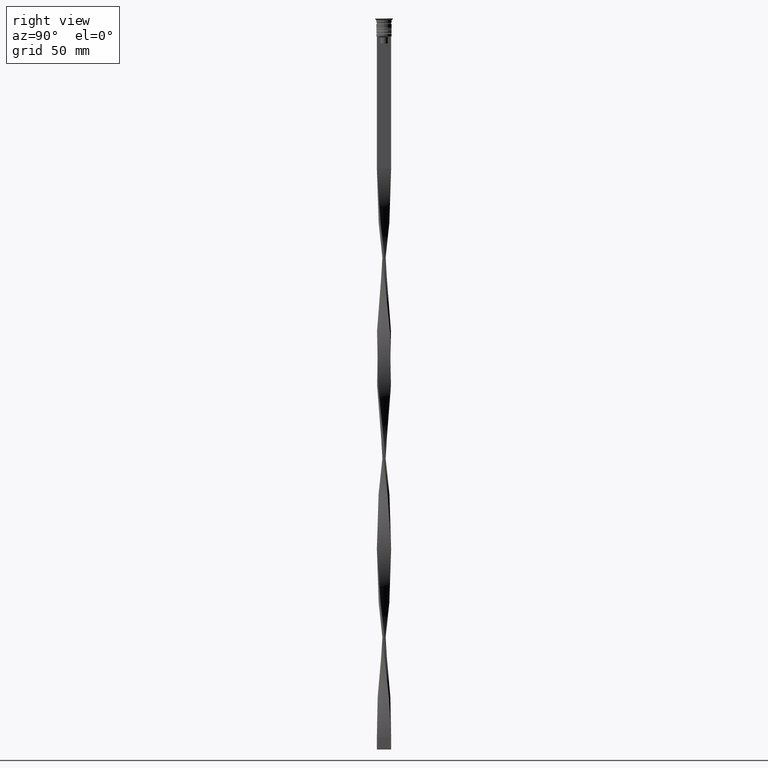
[diagram: clean part render]
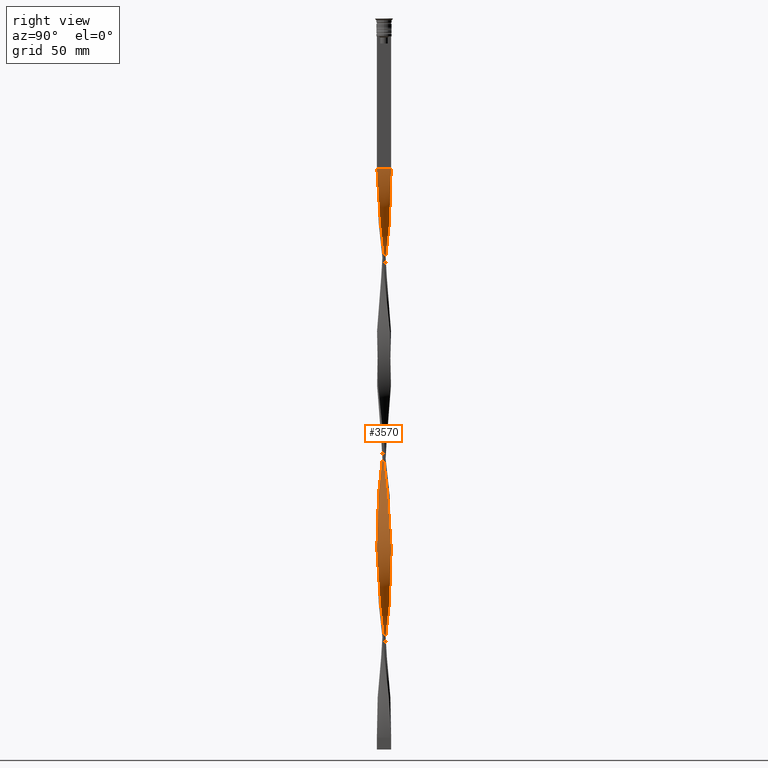
[diagram: same view with one face highlighted and labeled with its STEP entity id]
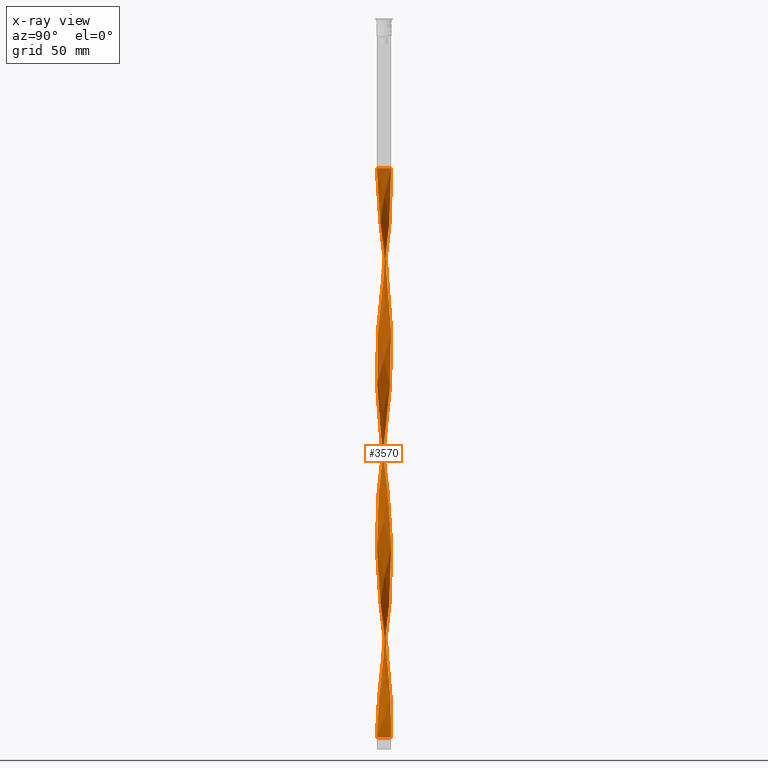
[diagram: x-ray of the same camera — body ghosted, the highlighted face saturated]
A machine part, right view. The second image highlights one B-rep face of the part: STEP entity #3570.
The next image is the same camera in x-ray: the body ghosted, the highlighted face saturated — about 0% of this face is hidden behind the body in this view.
In plain terms, the highlighted face is a freeform B-spline surface patch.
Its self-contained STEP definition (entity closure, byte-faithful):
#14 = CARTESIAN_POINT ( 'NONE',  ( 1.572990165913117577, -2.614000010619525582, -160.7958333333332916 ) ) ;
#16 = CARTESIAN_POINT ( 'NONE',  ( -2.960649146587690961, -0.7361051204738561227, -184.7458333333333371 ) ) ;
#22 = CARTESIAN_POINT ( 'NONE',  ( -0.4999999999999995559, 3.000000000000000000, -302.5000000000000000 ) ) ;
#32 = CARTESIAN_POINT ( 'NONE',  ( 2.900014822434876738, -0.9164682371244565751, -90.94166666666667709 ) ) ;
#35 = CARTESIAN_POINT ( 'NONE',  ( -2.167864254064892471, 2.133158356978606118, -158.7999999999999829 ) ) ;
#55 = CARTESIAN_POINT ( 'NONE',  ( -0.5000000000000002220, -3.000000000000000000, -302.5000000000000000 ) ) ;
#58 = CARTESIAN_POINT ( 'NONE',  ( 2.827887207922633372, -1.144704353466774460, -88.94583333333332575 ) ) ;
#64 = CARTESIAN_POINT ( 'NONE',  ( -2.698661051697986757, 1.402579241272419175, -254.5999999999999375 ) ) ;
#75 = CARTESIAN_POINT ( 'NONE',  ( 2.698661051697987201, 1.402579241272418953, -110.9000000000000057 ) ) ;
#78 = CARTESIAN_POINT ( 'NONE',  ( -2.900014822434876738, 0.9164682371244570191, -170.7749999999999773 ) ) ;
#82 = DIRECTION ( 'NONE',  ( 0.000000000000000000, 1.000000000000000000, 0.000000000000000000 ) ) ;
#92 = CARTESIAN_POINT ( 'NONE',  ( 1.190190010362667694, -2.809046431942904931, -68.98749999999999716 ) ) ;
#95 = CARTESIAN_POINT ( 'NONE',  ( 2.474873734152916782, -1.767766952966369098, -82.95833333333332860 ) ) ;
#104 = CARTESIAN_POINT ( 'NONE',  ( -2.588275671453069027, 1.614968472182170878, -92.93750000000000000 ) ) ;
#113 = CARTESIAN_POINT ( 'NONE',  ( -0.02454077517687573706, 3.041282254305528010, -138.8416666666666401 ) ) ;
#136 = CARTESIAN_POINT ( 'NONE',  ( 0.2638948795261426006, -3.039350853412309483, -220.6708333333333485 ) ) ;
#144 = B_SPLINE_CURVE_WITH_KNOTS ( 'NONE', 3,
 ( #3843, #1213, #329, #22 ),
 .UNSPECIFIED., .F., .F.,
 ( 4, 4 ),
 ( 0.000000000000000000, 1.000000000000000000 ),
 .UNSPECIFIED. ) ;
#150 = CARTESIAN_POINT ( 'NONE',  ( -0.9164682371244562420, 2.900014822434877182, -74.97499999999999432 ) ) ;
#157 = CARTESIAN_POINT ( 'NONE',  ( 3.043213655198747869, -0.2148133291723924587, -256.5958333333332462 ) ) ;
#159 = CARTESIAN_POINT ( 'NONE',  ( 2.827887207922633372, -1.144704353466774460, -248.6124999999999829 ) ) ;
#161 = CARTESIAN_POINT ( 'NONE',  ( -2.698661051697986757, 1.402579241272419175, -94.93333333333332291 ) ) ;
#169 =( BOUNDED_CURVE ( )  B_SPLINE_CURVE ( 2, ( #286, #3805, #2640, #2654, #3839, #1176, #2405, #3601, #3328, #2757, #95, #2469, #2702, #58, #3295, #3312, #668, #3048, #3276, #1576, #1798, #3620, #340, #651, #1281, #3636, #1519, #1249, #3657, #1006, #1832, #383, #692, #1871, #1538, #3010, #360, #2719, #1846, #950, #2429, #968, #1266, #2122, #2137, #2993, #2451, #612, #35, #3256, #2743, #3027, #2978, #1562, #78, #982, #2154, #401, #2687, #325, #1502, #16, #1210, #2390, #3579, #926, #2099, #636, #1818, #1225, #1322, #2574, #2508, #3695, #2246, #1677, #2861, #1388, #1611, #2815, #2208, #3387, #1633, #789, #747, #2176, #771, #2528, #3079, #1926, #202, #2554, #437, #159, #3756, #3350, #3099, #3120, #3434, #1967, #464, #710, #3137, #1342, #1363, #1039, #3715, #1059, #177, #2230, #3413, #1901, #3738, #1887, #2794, #3065, #1655, #1948, #419, #483, #2837 ),
 .UNSPECIFIED., .F., .T. ) 
 B_SPLINE_CURVE_WITH_KNOTS ( ( 3, 2, 2, 2, 2, 2, 2, 2, 2, 2, 2, 2, 2, 2, 2, 2, 2, 2, 2, 2, 2, 2, 2, 2, 2, 2, 2, 2, 2, 2, 2, 2, 2, 2, 2, 2, 2, 2, 2, 2, 2, 2, 2, 2, 2, 2, 2, 2, 2, 2, 2, 2, 2, 2, 2, 2, 2, 2, 2, 2, 3 ),
 ( 0.000000000000000000, 0.01250000000000000243, 0.02500000000000000486, 0.03749999999999999861, 0.05000000000000000971, 0.06250000000000000000, 0.07499999999999999722, 0.08749999999999998057, 0.1000000000000000194, 0.1125000000000000028, 0.1250000000000000000, 0.1375000000000000111, 0.1499999999999999944, 0.1625000000000000056, 0.1749999999999999611, 0.1875000000000000000, 0.2000000000000000389, 0.2124999999999999944, 0.2250000000000000056, 0.2374999999999999611, 0.2500000000000000000, 0.2625000000000000111, 0.2750000000000000222, 0.2874999999999999778, 0.2999999999999999889, 0.3125000000000000000, 0.3250000000000000111, 0.3375000000000000777, 0.3499999999999999223, 0.3624999999999999889, 0.3750000000000000000, 0.3875000000000000111, 0.4000000000000000777, 0.4124999999999999223, 0.4249999999999999889, 0.4375000000000000000, 0.4500000000000000111, 0.4625000000000000777, 0.4749999999999999223, 0.4874999999999999889, 0.5000000000000000000, 0.5124999999999999556, 0.5250000000000000222, 0.5374999999999999778, 0.5500000000000000444, 0.5625000000000000000, 0.5749999999999999556, 0.5875000000000000222, 0.5999999999999999778, 0.6125000000000000444, 0.6250000000000000000, 0.6374999999999999556, 0.6500000000000000222, 0.6624999999999999778, 0.6750000000000001554, 0.6875000000000000000, 0.6999999999999998446, 0.7125000000000000222, 0.7249999999999999778, 0.7375000000000001554, 0.7500000000000000000 ),
 .UNSPECIFIED. ) 
 CURVE ( )  GEOMETRIC_REPRESENTATION_ITEM ( )  RATIONAL_B_SPLINE_CURVE ( ( 1.000000000000000000, 0.9969173337331279638, 1.000000000000000000, 0.9969173337331279638, 1.000000000000000000, 0.9969173337331279638, 1.000000000000000000, 0.9969173337331279638, 1.000000000000000000, 0.9969173337331279638, 1.000000000000000000, 0.9969173337331279638, 1.000000000000000000, 0.9969173337331279638, 1.000000000000000000, 0.9969173337331279638, 1.000000000000000000, 0.9969173337331279638, 1.000000000000000000, 0.9969173337331279638, 1.000000000000000000, 0.9969173337331279638, 1.000000000000000000, 0.9969173337331279638, 1.000000000000000000, 0.9969173337331279638, 1.000000000000000000, 0.9969173337331279638, 1.000000000000000000, 0.9969173337331279638, 1.000000000000000000, 0.9969173337331279638, 1.000000000000000000, 0.9969173337331279638, 1.000000000000000000, 0.9969173337331279638, 1.000000000000000000, 0.9969173337331279638, 1.000000000000000000, 0.9969173337331279638, 1.000000000000000000, 0.9969173337331279638, 1.000000000000000000, 0.9969173337331279638, 1.000000000000000000, 0.9969173337331279638, 1.000000000000000000, 0.9969173337331279638, 1.000000000000000000, 0.9969173337331279638, 1.000000000000000000, 0.9969173337331279638, 1.000000000000000000, 0.9969173337331279638, 1.000000000000000000, 0.9969173337331279638, 1.000000000000000000, 0.9969173337331279638, 1.000000000000000000, 0.9969173337331279638, 1.000000000000000000, 0.9969173337331279638, 1.000000000000000000, 0.9969173337331279638, 1.000000000000000000, 0.9969173337331279638, 1.000000000000000000, 0.9969173337331279638, 1.000000000000000000, 0.9969173337331279638, 1.000000000000000000, 0.9969173337331279638, 1.000000000000000000, 0.9969173337331279638, 1.000000000000000000, 0.9969173337331279638, 1.000000000000000000, 0.9969173337331279638, 1.000000000000000000, 0.9969173337331279638, 1.000000000000000000, 0.9969173337331279638, 1.000000000000000000, 0.9969173337331279638, 1.000000000000000000, 0.9969173337331279638, 1.000000000000000000, 0.9969173337331279638, 1.000000000000000000, 0.9969173337331279638, 1.000000000000000000, 0.9969173337331279638, 1.000000000000000000, 0.9969173337331279638, 1.000000000000000000, 0.9969173337331279638, 1.000000000000000000, 0.9969173337331279638, 1.000000000000000000, 0.9969173337331279638, 1.000000000000000000, 0.9969173337331279638, 1.000000000000000000, 0.9969173337331279638, 1.000000000000000000, 0.9969173337331279638, 1.000000000000000000, 0.9969173337331279638, 1.000000000000000000, 0.9969173337331279638, 1.000000000000000000, 0.9969173337331279638, 1.000000000000000000, 0.9969173337331279638, 1.000000000000000000, 0.9969173337331279638, 1.000000000000000000, 0.9969173337331279638, 1.000000000000000000, 0.9969173337331279638, 1.000000000000000000 ) ) 
 REPRESENTATION_ITEM ( '' )  );
#175 = CARTESIAN_POINT ( 'NONE',  ( 1.999981050443478514, -2.303772973937592283, -236.6374999999999886 ) ) ;
#177 = CARTESIAN_POINT ( 'NONE',  ( 2.133158356978606118, 2.167864254064892471, -278.5499999999999545 ) ) ;
#180 = CARTESIAN_POINT ( 'NONE',  ( -3.041282254305528454, 0.02454077517687633381, -106.9083333333333314 ) ) ;
#193 = CARTESIAN_POINT ( 'NONE',  ( 2.446024322695329989, -1.807474761312824807, -170.7749999999999773 ) ) ;
#200 = CARTESIAN_POINT ( 'NONE',  ( -3.000000000000000000, -0.4999999999999993339, -182.7499999999999716 ) ) ;
#202 = CARTESIAN_POINT ( 'NONE',  ( 2.474873734152916782, -1.767766952966369098, -242.6249999999999716 ) ) ;
#205 = CARTESIAN_POINT ( 'NONE',  ( -2.884847789265297724, 0.9631475654182616308, -98.92499999999998295 ) ) ;
#216 = CARTESIAN_POINT ( 'NONE',  ( -1.807474761312824363, -2.446024322695329989, -130.8583333333333201 ) ) ;
#222 = CARTESIAN_POINT ( 'NONE',  ( 2.133158356978606118, 2.167864254064892471, -278.5499999999999545 ) ) ;
#227 = CARTESIAN_POINT ( 'NONE',  ( -0.4515227249772654772, 3.007678046072934208, -70.98333333333333428 ) ) ;
#235 = CARTESIAN_POINT ( 'NONE',  ( 2.884847789265297280, -0.9631475654182618529, -178.7583333333332973 ) ) ;
#243 = CARTESIAN_POINT ( 'NONE',  ( -1.144704353466773794, 2.827887207922633372, -236.6374999999999886 ) ) ;
#255 = CARTESIAN_POINT ( 'NONE',  ( 1.358847259689945686, -2.720943609271079033, -158.7999999999999829 ) ) ;
#264 = CARTESIAN_POINT ( 'NONE',  ( 1.572990165913118021, 2.614000010619525138, -284.5375000000000796 ) ) ;
#268 = CARTESIAN_POINT ( 'NONE',  ( -2.884847789265297724, 0.9631475654182616308, -258.5916666666666401 ) ) ;
#275 = CARTESIAN_POINT ( 'NONE',  ( -2.474873734152916782, -1.767766952966368654, -122.8749999999999858 ) ) ;
#284 = CARTESIAN_POINT ( 'NONE',  ( 2.335747457686309758, 1.962543740019619731, -204.7041666666666799 ) ) ;
#286 = CARTESIAN_POINT ( 'NONE',  ( 0.4999999999999998890, -3.000000000000000000, -63.00000000000000000 ) ) ;
#290 = CARTESIAN_POINT ( 'NONE',  ( -0.7361051204738556786, -2.960649146587690961, -300.5041666666666629 ) ) ;
#296 = CARTESIAN_POINT ( 'NONE',  ( 1.358847259689946352, 2.720943609271078589, -286.5333333333333030 ) ) ;
#301 = CARTESIAN_POINT ( 'NONE',  ( -1.358847259689946130, 2.720943609271079033, -238.6333333333332973 ) ) ;
#322 = CARTESIAN_POINT ( 'NONE',  ( 0.4515227249772650886, -3.007678046072934652, -150.8166666666666629 ) ) ;
#325 = CARTESIAN_POINT ( 'NONE',  ( -3.039350853412309483, -0.2638948795261426561, -180.7541666666666629 ) ) ;
#329 = CARTESIAN_POINT ( 'NONE',  ( -0.4999999999999997780, 1.000000000000000000, -302.5000000000000000 ) ) ;
#339 = CARTESIAN_POINT ( 'NONE',  ( 1.614968472182170878, -2.588275671453069027, -72.97916666666665719 ) ) ;
#340 = CARTESIAN_POINT ( 'NONE',  ( 2.884847789265297724, 0.9631475654182612978, -106.9083333333333314 ) ) ;
#357 = CARTESIAN_POINT ( 'NONE',  ( 0.4999999999999998890, -3.000000000000000000, -63.00000000000000000 ) ) ;
#360 = CARTESIAN_POINT ( 'NONE',  ( 0.4515227249772658102, 3.007678046072934208, -134.8499999999999659 ) ) ;
#366 = CARTESIAN_POINT ( 'NONE',  ( -2.960649146587690961, 0.7361051204738554565, -260.5874999999999773 ) ) ;
#380 = CARTESIAN_POINT ( 'NONE',  ( -2.720943609271079033, -1.358847259689945686, -278.5499999999999545 ) ) ;
#383 = CARTESIAN_POINT ( 'NONE',  ( 1.572990165913117799, 2.614000010619525138, -124.8708333333333371 ) ) ;
#388 = CARTESIAN_POINT ( 'NONE',  ( 0.2638948795261445435, 3.039350853412309039, -64.99583333333333712 ) ) ;
#399 = CARTESIAN_POINT ( 'NONE',  ( -1.807474761312823919, 2.446024322695330877, -154.8083333333333371 ) ) ;
#401 = CARTESIAN_POINT ( 'NONE',  ( -3.043213655198747869, 0.2148133291723914595, -176.7624999999999886 ) ) ;
#411 = VERTEX_POINT ( 'NONE', #3437 ) ;
#415 = CARTESIAN_POINT ( 'NONE',  ( 2.133158356978606118, 2.167864254064892471, -118.8833333333333258 ) ) ;
#419 = CARTESIAN_POINT ( 'NONE',  ( -0.02454077517687573706, 3.041282254305528010, -298.5083333333332689 ) ) ;
#433 = CARTESIAN_POINT ( 'NONE',  ( 1.962543740019620175, 2.335747457686308426, -280.5458333333333485 ) ) ;
#437 = CARTESIAN_POINT ( 'NONE',  ( 2.720943609271079033, -1.358847259689946130, -246.6166666666666174 ) ) ;
#462 = CARTESIAN_POINT ( 'NONE',  ( 0.4999999999999998890, -3.000000000000000000, -222.6666666666666288 ) ) ;
#464 = CARTESIAN_POINT ( 'NONE',  ( 3.000000000000000000, 0.4999999999999996669, -262.5833333333332575 ) ) ;
#466 = CARTESIAN_POINT ( 'NONE',  ( -2.133158356978606118, 2.167864254064892915, -86.95000000000000284 ) ) ;
#481 = CARTESIAN_POINT ( 'NONE',  ( 1.614968472182170878, -2.588275671453069027, -232.6458333333333428 ) ) ;
#483 = CARTESIAN_POINT ( 'NONE',  ( -0.2638948795261441549, 3.039350853412309483, -300.5041666666666629 ) ) ;
#498 = CARTESIAN_POINT ( 'NONE',  ( 2.303772973937592283, 1.999981050443478514, -276.5541666666666174 ) ) ;
#502 = CARTESIAN_POINT ( 'NONE',  ( 0.4999999999999998890, 3.000000000000000000, -63.00000000000000000 ) ) ;
#513 = CARTESIAN_POINT ( 'NONE',  ( 0.9164682371244560199, -2.900014822434876738, -154.8083333333333371 ) ) ;
#520 = CARTESIAN_POINT ( 'NONE',  ( 2.614000010619525138, -1.572990165913118021, -244.6208333333333371 ) ) ;
#530 = CARTESIAN_POINT ( 'NONE',  ( -1.144704353466774016, 2.827887207922633372, -236.6374999999999886 ) ) ;
#538 = CARTESIAN_POINT ( 'NONE',  ( -0.4515227249772654772, 3.007678046072934208, -230.6499999999999773 ) ) ;
#544 = CARTESIAN_POINT ( 'NONE',  ( 1.999981050443478070, 2.303772973937591839, -208.6958333333333258 ) ) ;
#553 = CARTESIAN_POINT ( 'NONE',  ( -3.000000000000000000, 0.5000000000000001110, -262.5833333333332575 ) ) ;
#567 = CARTESIAN_POINT ( 'NONE',  ( -1.190190010362667916, -2.809046431942904931, -136.8458333333333314 ) ) ;
#575 = CARTESIAN_POINT ( 'NONE',  ( 0.4515227249772658102, 3.007678046072934208, -294.5166666666666515 ) ) ;
#579 = CARTESIAN_POINT ( 'NONE',  ( 2.474873734152917226, 1.767766952966368210, -202.7083333333332860 ) ) ;
#587 = CARTESIAN_POINT ( 'NONE',  ( 1.144704353466773572, -2.827887207922633372, -156.8041666666666458 ) ) ;
#596 = CARTESIAN_POINT ( 'NONE',  ( -2.446024322695329989, 1.807474761312824363, -250.6083333333333201 ) ) ;
#607 = CARTESIAN_POINT ( 'NONE',  ( 0.9164682371244567971, 2.900014822434876738, -290.5249999999999204 ) ) ;
#611 = CARTESIAN_POINT ( 'NONE',  ( 1.190190010362667028, 2.809046431942904931, -216.6791666666666742 ) ) ;
#612 = CARTESIAN_POINT ( 'NONE',  ( -1.999981050443478070, 2.303772973937591839, -156.8041666666666458 ) ) ;
#616 = CARTESIAN_POINT ( 'NONE',  ( -2.720943609271079033, -1.358847259689945686, -278.5499999999999545 ) ) ;
#632 = CARTESIAN_POINT ( 'NONE',  ( -2.474873734152916782, -1.767766952966368654, -282.5416666666666288 ) ) ;
#636 = CARTESIAN_POINT ( 'NONE',  ( -2.303772973937592283, -1.999981050443477182, -196.7208333333333030 ) ) ;
#650 = CARTESIAN_POINT ( 'NONE',  ( -0.9631475654182609647, 2.884847789265297724, -146.8249999999999886 ) ) ;
#651 = CARTESIAN_POINT ( 'NONE',  ( 2.809046431942904931, 1.190190010362667472, -108.9041666666666828 ) ) ;
#659 = CARTESIAN_POINT ( 'NONE',  ( -2.167864254064893359, -2.133158356978605674, -286.5333333333333030 ) ) ;
#667 = CARTESIAN_POINT ( 'NONE',  ( 1.402579241272418953, -2.698661051697986757, -70.98333333333333428 ) ) ;
#668 = CARTESIAN_POINT ( 'NONE',  ( 3.007678046072934208, -0.4515227249772656992, -94.93333333333332291 ) ) ;
#675 = CARTESIAN_POINT ( 'NONE',  ( -1.614968472182171100, -2.588275671453069027, -292.5208333333333144 ) ) ;
#689 = CARTESIAN_POINT ( 'NONE',  ( -1.190190010362667250, 2.809046431942904931, -148.8208333333332973 ) ) ;
#692 = CARTESIAN_POINT ( 'NONE',  ( 1.358847259689946352, 2.720943609271078589, -126.8666666666666600 ) ) ;
#697 =( BOUNDED_SURFACE ( )  B_SPLINE_SURFACE ( 1, 2, ( 
 ( #502, #388, #3101, #1657, #227, #1707, #791, #2864, #3338, #3139, #1390, #1969, #466, #1566, #2556, #1681, #161, #2456, #205, #3459, #2839, #3643, #180, #1995, #2577, #2885, #2747, #1635, #3167, #2817, #2530, #773, #1950, #3758, #3122, #1097, #816, #3485, #1853, #3035, #1762, #2386, #3518, #906, #322, #3803, #3501, #854, #2686, #14, #1195, #2331, #1796, #869, #837, #3241, #1173, #1742, #2047, #1209, #2370, #2926, #1466, #2015, #1501, #3224, #1780, #2083, #3255, #2943, #579, #284, #2652, #890, #3836, #2350, #2669, #611, #3202, #2973, #3560, #3186, #3540, #2956, #538, #1724, #2904, #243, #301, #2069, #1430, #1451, #2619, #2029, #596, #1480, #1145, #2312, #268, #3859, #553, #2639, #3823, #1162, #1831, #3009, #1561, #2755, #380, #981, #632, #3577, #3063, #2428, #3025, #3652, #1814, #2717, #1247, #925, #55 ),
 ( #357, #2991, #2740, #92, #667, #339, #2136, #1004, #2446, #3348, #1517, #2700, #2175, #3291, #32, #3617, #1536, #1575, #964, #3310, #2120, #1845, #1224, #2098, #75, #1302, #1263, #708, #415, #2404, #3598, #949, #1588, #2770, #1279, #3633, #1885, #2152, #113, #2467, #3272, #3326, #650, #689, #1870, #3047, #399, #3163, #1701, #1923, #3119, #2525, #2550, #3736, #2265, #2507, #1093, #1037, #2572, #2860, #200, #3714, #3432, #1385, #3755, #2191, #3454, #787, #1077, #2491, #3098, #810, #3694, #1654, #2228, #1988, #2793, #3384, #1054, #136, #462, #2836, #1609, #743, #1630, #481, #1672, #175, #2244, #3365, #3674, #520, #1340, #1946, #2880, #725, #2813, #157, #1020, #3411, #1898, #769, #1360, #1965, #3078, #1321, #3136, #498, #222, #433, #2207, #264, #296, #887, #607, #2080, #575, #1775, #3251, #1736, #3237 ) ),
 .UNSPECIFIED., .F., .F., .F. ) 
 B_SPLINE_SURFACE_WITH_KNOTS ( ( 2, 2 ),
 ( 3, 2, 2, 2, 2, 2, 2, 2, 2, 2, 2, 2, 2, 2, 2, 2, 2, 2, 2, 2, 2, 2, 2, 2, 2, 2, 2, 2, 2, 2, 2, 2, 2, 2, 2, 2, 2, 2, 2, 2, 2, 2, 2, 2, 2, 2, 2, 2, 2, 2, 2, 2, 2, 2, 2, 2, 2, 2, 2, 2, 3 ),
 ( 0.000000000000000000, 1.000000000000000000 ),
 ( 0.000000000000000000, 0.01250000000000000069, 0.02500000000000000139, 0.03749999999999999861, 0.05000000000000000278, 0.06250000000000000000, 0.07499999999999999722, 0.08749999999999999445, 0.1000000000000000056, 0.1125000000000000028, 0.1250000000000000000, 0.1375000000000000111, 0.1499999999999999944, 0.1625000000000000056, 0.1749999999999999889, 0.1875000000000000000, 0.2000000000000000111, 0.2124999999999999944, 0.2250000000000000056, 0.2374999999999999889, 0.2500000000000000000, 0.2625000000000000111, 0.2750000000000000222, 0.2874999999999999778, 0.2999999999999999889, 0.3125000000000000000, 0.3250000000000000111, 0.3375000000000000222, 0.3499999999999999778, 0.3624999999999999889, 0.3750000000000000000, 0.3875000000000000111, 0.4000000000000000222, 0.4124999999999999778, 0.4249999999999999889, 0.4375000000000000000, 0.4500000000000000111, 0.4625000000000000222, 0.4749999999999999778, 0.4874999999999999889, 0.5000000000000000000, 0.5124999999999999556, 0.5250000000000000222, 0.5374999999999999778, 0.5500000000000000444, 0.5625000000000000000, 0.5749999999999999556, 0.5875000000000000222, 0.5999999999999999778, 0.6125000000000000444, 0.6250000000000000000, 0.6374999999999999556, 0.6500000000000000222, 0.6624999999999999778, 0.6750000000000000444, 0.6875000000000000000, 0.6999999999999999556, 0.7125000000000000222, 0.7249999999999999778, 0.7375000000000000444, 0.7500000000000000000 ),
 .UNSPECIFIED. ) 
 GEOMETRIC_REPRESENTATION_ITEM ( )  RATIONAL_B_SPLINE_SURFACE ( (
 ( 1.000000000000000000, 0.9969173337331279638, 1.000000000000000000, 0.9969173337331279638, 1.000000000000000000, 0.9969173337331279638, 1.000000000000000000, 0.9969173337331279638, 1.000000000000000000, 0.9969173337331279638, 1.000000000000000000, 0.9969173337331279638, 1.000000000000000000, 0.9969173337331279638, 1.000000000000000000, 0.9969173337331279638, 1.000000000000000000, 0.9969173337331279638, 1.000000000000000000, 0.9969173337331279638, 1.000000000000000000, 0.9969173337331279638, 1.000000000000000000, 0.9969173337331279638, 1.000000000000000000, 0.9969173337331279638, 1.000000000000000000, 0.9969173337331279638, 1.000000000000000000, 0.9969173337331279638, 1.000000000000000000, 0.9969173337331279638, 1.000000000000000000, 0.9969173337331279638, 1.000000000000000000, 0.9969173337331279638, 1.000000000000000000, 0.9969173337331279638, 1.000000000000000000, 0.9969173337331279638, 1.000000000000000000, 0.9969173337331279638, 1.000000000000000000, 0.9969173337331279638, 1.000000000000000000, 0.9969173337331279638, 1.000000000000000000, 0.9969173337331279638, 1.000000000000000000, 0.9969173337331279638, 1.000000000000000000, 0.9969173337331279638, 1.000000000000000000, 0.9969173337331279638, 1.000000000000000000, 0.9969173337331279638, 1.000000000000000000, 0.9969173337331279638, 1.000000000000000000, 0.9969173337331279638, 1.000000000000000000, 0.9969173337331279638, 1.000000000000000000, 0.9969173337331279638, 1.000000000000000000, 0.9969173337331279638, 1.000000000000000000, 0.9969173337331279638, 1.000000000000000000, 0.9969173337331279638, 1.000000000000000000, 0.9969173337331279638, 1.000000000000000000, 0.9969173337331279638, 1.000000000000000000, 0.9969173337331279638, 1.000000000000000000, 0.9969173337331279638, 1.000000000000000000, 0.9969173337331279638, 1.000000000000000000, 0.9969173337331279638, 1.000000000000000000, 0.9969173337331279638, 1.000000000000000000, 0.9969173337331279638, 1.000000000000000000, 0.9969173337331279638, 1.000000000000000000, 0.9969173337331279638, 1.000000000000000000, 0.9969173337331279638, 1.000000000000000000, 0.9969173337331279638, 1.000000000000000000, 0.9969173337331279638, 1.000000000000000000, 0.9969173337331279638, 1.000000000000000000, 0.9969173337331279638, 1.000000000000000000, 0.9969173337331279638, 1.000000000000000000, 0.9969173337331279638, 1.000000000000000000, 0.9969173337331279638, 1.000000000000000000, 0.9969173337331279638, 1.000000000000000000, 0.9969173337331279638, 1.000000000000000000, 0.9969173337331279638, 1.000000000000000000, 0.9969173337331279638, 1.000000000000000000, 0.9969173337331279638, 1.000000000000000000, 0.9969173337331279638, 1.000000000000000000, 0.9969173337331279638, 1.000000000000000000),
 ( 1.000000000000000000, 0.9969173337331279638, 1.000000000000000000, 0.9969173337331279638, 1.000000000000000000, 0.9969173337331279638, 1.000000000000000000, 0.9969173337331279638, 1.000000000000000000, 0.9969173337331279638, 1.000000000000000000, 0.9969173337331279638, 1.000000000000000000, 0.9969173337331279638, 1.000000000000000000, 0.9969173337331279638, 1.000000000000000000, 0.9969173337331279638, 1.000000000000000000, 0.9969173337331279638, 1.000000000000000000, 0.9969173337331279638, 1.000000000000000000, 0.9969173337331279638, 1.000000000000000000, 0.9969173337331279638, 1.000000000000000000, 0.9969173337331279638, 1.000000000000000000, 0.9969173337331279638, 1.000000000000000000, 0.9969173337331279638, 1.000000000000000000, 0.9969173337331279638, 1.000000000000000000, 0.9969173337331279638, 1.000000000000000000, 0.9969173337331279638, 1.000000000000000000, 0.9969173337331279638, 1.000000000000000000, 0.9969173337331279638, 1.000000000000000000, 0.9969173337331279638, 1.000000000000000000, 0.9969173337331279638, 1.000000000000000000, 0.9969173337331279638, 1.000000000000000000, 0.9969173337331279638, 1.000000000000000000, 0.9969173337331279638, 1.000000000000000000, 0.9969173337331279638, 1.000000000000000000, 0.9969173337331279638, 1.000000000000000000, 0.9969173337331279638, 1.000000000000000000, 0.9969173337331279638, 1.000000000000000000, 0.9969173337331279638, 1.000000000000000000, 0.9969173337331279638, 1.000000000000000000, 0.9969173337331279638, 1.000000000000000000, 0.9969173337331279638, 1.000000000000000000, 0.9969173337331279638, 1.000000000000000000, 0.9969173337331279638, 1.000000000000000000, 0.9969173337331279638, 1.000000000000000000, 0.9969173337331279638, 1.000000000000000000, 0.9969173337331279638, 1.000000000000000000, 0.9969173337331279638, 1.000000000000000000, 0.9969173337331279638, 1.000000000000000000, 0.9969173337331279638, 1.000000000000000000, 0.9969173337331279638, 1.000000000000000000, 0.9969173337331279638, 1.000000000000000000, 0.9969173337331279638, 1.000000000000000000, 0.9969173337331279638, 1.000000000000000000, 0.9969173337331279638, 1.000000000000000000, 0.9969173337331279638, 1.000000000000000000, 0.9969173337331279638, 1.000000000000000000, 0.9969173337331279638, 1.000000000000000000, 0.9969173337331279638, 1.000000000000000000, 0.9969173337331279638, 1.000000000000000000, 0.9969173337331279638, 1.000000000000000000, 0.9969173337331279638, 1.000000000000000000, 0.9969173337331279638, 1.000000000000000000, 0.9969173337331279638, 1.000000000000000000, 0.9969173337331279638, 1.000000000000000000, 0.9969173337331279638, 1.000000000000000000, 0.9969173337331279638, 1.000000000000000000, 0.9969173337331279638, 1.000000000000000000) ) ) 
 REPRESENTATION_ITEM ( '' )  SURFACE ( )  );
#708 = CARTESIAN_POINT ( 'NONE',  ( 2.303772973937592283, 1.999981050443478514, -116.8875000000000028 ) ) ;
#710 = CARTESIAN_POINT ( 'NONE',  ( 2.960649146587690961, 0.7361051204738551235, -264.5791666666666515 ) ) ;
#725 = CARTESIAN_POINT ( 'NONE',  ( 2.972142436947121436, -0.6882321207821390230, -252.6041666666666003 ) ) ;
#735 = CARTESIAN_POINT ( 'NONE',  ( -0.2148133291723922644, 3.043213655198747869, -68.98749999999999716 ) ) ;
#743 = CARTESIAN_POINT ( 'NONE',  ( 1.190190010362667694, -2.809046431942904931, -228.6541666666666686 ) ) ;
#747 = CARTESIAN_POINT ( 'NONE',  ( 1.402579241272418953, -2.698661051697986757, -230.6499999999999773 ) ) ;
#761 = CARTESIAN_POINT ( 'NONE',  ( -2.972142436947120991, -0.6882321207821388009, -112.8958333333333428 ) ) ;
#769 = CARTESIAN_POINT ( 'NONE',  ( 2.960649146587690517, 0.7361051204738550124, -264.5791666666666515 ) ) ;
#771 = CARTESIAN_POINT ( 'NONE',  ( 1.807474761312824141, -2.446024322695330433, -234.6416666666666515 ) ) ;
#773 = CARTESIAN_POINT ( 'NONE',  ( -2.335747457686308870, -1.962543740019620175, -124.8708333333333371 ) ) ;
#781 = CARTESIAN_POINT ( 'NONE',  ( -2.698661051697986757, 1.402579241272419175, -94.93333333333332291 ) ) ;
#787 = CARTESIAN_POINT ( 'NONE',  ( -2.303772973937592727, -1.999981050443477182, -196.7208333333333314 ) ) ;
#789 = CARTESIAN_POINT ( 'NONE',  ( 1.190190010362667472, -2.809046431942904931, -228.6541666666666686 ) ) ;
#791 = CARTESIAN_POINT ( 'NONE',  ( -0.9164682371244562420, 2.900014822434877182, -74.97499999999999432 ) ) ;
#802 = CARTESIAN_POINT ( 'NONE',  ( 0.2148133291723918759, -3.043213655198747869, -148.8208333333333258 ) ) ;
#807 =( BOUNDED_CURVE ( )  B_SPLINE_CURVE ( 2, ( #2484, #2169, #2805, #735, #3358, #1879, #150, #1071, #2200, #3056, #3686, #2238, #1330, #3426, #3343, #104, #781, #2182, #3669, #1030, #1892, #2786, #3377, #3072, #3403, #761, #1939, #3112, #1768, #2895, #275, #3525, #3153, #2874, #216, #2059, #3233, #567, #1716, #1166, #2625, #3827, #1420, #802, #1379, #2910, #513, #587, #255, #2004, #827, #1440, #881, #2019, #193, #2604, #3490, #2643, #235, #2565, #3808, #3191, #3470, #1693, #3748, #1456, #2337, #1754, #1977, #1150, #1398, #1087, #843, #544, #2277, #3446, #1731, #2934, #1132, #2584, #3790, #2259, #3507, #3769, #1109, #2319, #3175, #530, #2301, #2036, #859, #3209, #1492, #2947, #931, #2435, #64, #1526, #1230, #366, #3282, #3625, #2075, #1785, #2962, #972, #2144, #3300, #616, #1254, #2707, #3316, #659, #2729, #2088, #675, #3260, #1806, #3017, #290, #1471 ),
 .UNSPECIFIED., .F., .T. ) 
 B_SPLINE_CURVE_WITH_KNOTS ( ( 3, 2, 2, 2, 2, 2, 2, 2, 2, 2, 2, 2, 2, 2, 2, 2, 2, 2, 2, 2, 2, 2, 2, 2, 2, 2, 2, 2, 2, 2, 2, 2, 2, 2, 2, 2, 2, 2, 2, 2, 2, 2, 2, 2, 2, 2, 2, 2, 2, 2, 2, 2, 2, 2, 2, 2, 2, 2, 2, 2, 3 ),
 ( 0.000000000000000000, 0.01250000000000000243, 0.02500000000000000486, 0.03749999999999999861, 0.05000000000000000971, 0.06250000000000000000, 0.07499999999999999722, 0.08749999999999998057, 0.1000000000000000194, 0.1125000000000000028, 0.1250000000000000000, 0.1375000000000000111, 0.1499999999999999944, 0.1625000000000000056, 0.1749999999999999611, 0.1875000000000000000, 0.2000000000000000389, 0.2124999999999999944, 0.2250000000000000056, 0.2374999999999999611, 0.2500000000000000000, 0.2625000000000000111, 0.2750000000000000222, 0.2874999999999999778, 0.2999999999999999889, 0.3125000000000000000, 0.3250000000000000111, 0.3375000000000000777, 0.3499999999999999223, 0.3624999999999999889, 0.3750000000000000000, 0.3875000000000000111, 0.4000000000000000777, 0.4124999999999999223, 0.4249999999999999889, 0.4375000000000000000, 0.4500000000000000111, 0.4625000000000000777, 0.4749999999999999223, 0.4874999999999999889, 0.5000000000000000000, 0.5124999999999999556, 0.5250000000000000222, 0.5374999999999999778, 0.5500000000000000444, 0.5625000000000000000, 0.5749999999999999556, 0.5875000000000000222, 0.5999999999999999778, 0.6125000000000000444, 0.6250000000000000000, 0.6374999999999999556, 0.6500000000000000222, 0.6624999999999999778, 0.6750000000000001554, 0.6875000000000000000, 0.6999999999999998446, 0.7125000000000000222, 0.7249999999999999778, 0.7375000000000001554, 0.7500000000000000000 ),
 .UNSPECIFIED. ) 
 CURVE ( )  GEOMETRIC_REPRESENTATION_ITEM ( )  RATIONAL_B_SPLINE_CURVE ( ( 1.000000000000000000, 0.9969173337331279638, 1.000000000000000000, 0.9969173337331279638, 1.000000000000000000, 0.9969173337331279638, 1.000000000000000000, 0.9969173337331279638, 1.000000000000000000, 0.9969173337331279638, 1.000000000000000000, 0.9969173337331279638, 1.000000000000000000, 0.9969173337331279638, 1.000000000000000000, 0.9969173337331279638, 1.000000000000000000, 0.9969173337331279638, 1.000000000000000000, 0.9969173337331279638, 1.000000000000000000, 0.9969173337331279638, 1.000000000000000000, 0.9969173337331279638, 1.000000000000000000, 0.9969173337331279638, 1.000000000000000000, 0.9969173337331279638, 1.000000000000000000, 0.9969173337331279638, 1.000000000000000000, 0.9969173337331279638, 1.000000000000000000, 0.9969173337331279638, 1.000000000000000000, 0.9969173337331279638, 1.000000000000000000, 0.9969173337331279638, 1.000000000000000000, 0.9969173337331279638, 1.000000000000000000, 0.9969173337331279638, 1.000000000000000000, 0.9969173337331279638, 1.000000000000000000, 0.9969173337331279638, 1.000000000000000000, 0.9969173337331279638, 1.000000000000000000, 0.9969173337331279638, 1.000000000000000000, 0.9969173337331279638, 1.000000000000000000, 0.9969173337331279638, 1.000000000000000000, 0.9969173337331279638, 1.000000000000000000, 0.9969173337331279638, 1.000000000000000000, 0.9969173337331279638, 1.000000000000000000, 0.9969173337331279638, 1.000000000000000000, 0.9969173337331279638, 1.000000000000000000, 0.9969173337331279638, 1.000000000000000000, 0.9969173337331279638, 1.000000000000000000, 0.9969173337331279638, 1.000000000000000000, 0.9969173337331279638, 1.000000000000000000, 0.9969173337331279638, 1.000000000000000000, 0.9969173337331279638, 1.000000000000000000, 0.9969173337331279638, 1.000000000000000000, 0.9969173337331279638, 1.000000000000000000, 0.9969173337331279638, 1.000000000000000000, 0.9969173337331279638, 1.000000000000000000, 0.9969173337331279638, 1.000000000000000000, 0.9969173337331279638, 1.000000000000000000, 0.9969173337331279638, 1.000000000000000000, 0.9969173337331279638, 1.000000000000000000, 0.9969173337331279638, 1.000000000000000000, 0.9969173337331279638, 1.000000000000000000, 0.9969173337331279638, 1.000000000000000000, 0.9969173337331279638, 1.000000000000000000, 0.9969173337331279638, 1.000000000000000000, 0.9969173337331279638, 1.000000000000000000, 0.9969173337331279638, 1.000000000000000000, 0.9969173337331279638, 1.000000000000000000, 0.9969173337331279638, 1.000000000000000000, 0.9969173337331279638, 1.000000000000000000, 0.9969173337331279638, 1.000000000000000000, 0.9969173337331279638, 1.000000000000000000, 0.9969173337331279638, 1.000000000000000000, 0.9969173337331279638, 1.000000000000000000 ) ) 
 REPRESENTATION_ITEM ( '' )  );
#810 = CARTESIAN_POINT ( 'NONE',  ( -1.572990165913119798, -2.614000010619523806, -204.7041666666666799 ) ) ;
#816 = CARTESIAN_POINT ( 'NONE',  ( -1.402579241272419397, -2.698661051697986757, -134.8499999999999659 ) ) ;
#827 = CARTESIAN_POINT ( 'NONE',  ( 1.767766952966368654, -2.474873734152917226, -162.7916666666666572 ) ) ;
#837 = CARTESIAN_POINT ( 'NONE',  ( 2.446024322695329989, -1.807474761312824807, -170.7749999999999773 ) ) ;
#843 = CARTESIAN_POINT ( 'NONE',  ( 2.167864254064893803, 2.133158356978605674, -206.6999999999999602 ) ) ;
#854 = CARTESIAN_POINT ( 'NONE',  ( 1.144704353466773350, -2.827887207922633372, -156.8041666666666458 ) ) ;
#859 = CARTESIAN_POINT ( 'NONE',  ( -1.767766952966369098, 2.474873734152916782, -242.6249999999999716 ) ) ;
#869 = CARTESIAN_POINT ( 'NONE',  ( 2.303772973937592283, -1.999981050443477626, -168.7791666666666401 ) ) ;
#881 = CARTESIAN_POINT ( 'NONE',  ( 2.133158356978605674, -2.167864254064893359, -166.7833333333333030 ) ) ;
#887 = CARTESIAN_POINT ( 'NONE',  ( 1.144704353466774238, 2.827887207922633372, -288.5291666666666970 ) ) ;
#890 = CARTESIAN_POINT ( 'NONE',  ( 1.999981050443478070, 2.303772973937592283, -208.6958333333333258 ) ) ;
#906 = CARTESIAN_POINT ( 'NONE',  ( 0.2148133291723918481, -3.043213655198747869, -148.8208333333332973 ) ) ;
#925 = CARTESIAN_POINT ( 'NONE',  ( -0.7361051204738555676, -2.960649146587690517, -300.5041666666666629 ) ) ;
#926 = CARTESIAN_POINT ( 'NONE',  ( -2.588275671453068583, -1.614968472182171322, -192.7291666666666572 ) ) ;
#931 = CARTESIAN_POINT ( 'NONE',  ( -2.446024322695329989, 1.807474761312824363, -250.6083333333333201 ) ) ;
#949 = CARTESIAN_POINT ( 'NONE',  ( 1.572990165913118021, 2.614000010619525138, -124.8708333333333371 ) ) ;
#950 = CARTESIAN_POINT ( 'NONE',  ( -0.2638948795261441549, 3.039350853412309483, -140.8375000000000057 ) ) ;
#964 = CARTESIAN_POINT ( 'NONE',  ( 3.041282254305528454, 0.02454077517687600768, -98.92499999999998295 ) ) ;
#968 = CARTESIAN_POINT ( 'NONE',  ( -0.7361051204738549014, 2.960649146587690961, -144.8291666666666515 ) ) ;
#972 = CARTESIAN_POINT ( 'NONE',  ( -2.972142436947120991, -0.6882321207821388009, -272.5624999999999432 ) ) ;
#981 = CARTESIAN_POINT ( 'NONE',  ( -2.614000010619525138, -1.572990165913117577, -280.5458333333333485 ) ) ;
#982 = CARTESIAN_POINT ( 'NONE',  ( -2.972142436947120547, 0.6882321207821407993, -172.7708333333333144 ) ) ;
#1004 = CARTESIAN_POINT ( 'NONE',  ( 1.999981050443478514, -2.303772973937592283, -76.97083333333333144 ) ) ;
#1006 = CARTESIAN_POINT ( 'NONE',  ( 1.962543740019620397, 2.335747457686308426, -120.8791666666666629 ) ) ;
#1020 = CARTESIAN_POINT ( 'NONE',  ( 3.041282254305528454, 0.02454077517687600768, -258.5916666666666401 ) ) ;
#1030 = CARTESIAN_POINT ( 'NONE',  ( -2.960649146587690961, 0.7361051204738554565, -100.9208333333333343 ) ) ;
#1037 = CARTESIAN_POINT ( 'NONE',  ( -3.043213655198747869, 0.2148133291723914873, -176.7624999999999886 ) ) ;
#1039 = CARTESIAN_POINT ( 'NONE',  ( 2.588275671453069471, 1.614968472182170656, -272.5624999999999432 ) ) ;
#1054 = CARTESIAN_POINT ( 'NONE',  ( 0.02454077517687541440, -3.041282254305528010, -218.6749999999999829 ) ) ;
#1059 = CARTESIAN_POINT ( 'NONE',  ( 2.303772973937591839, 1.999981050443478514, -276.5541666666666742 ) ) ;
#1071 = CARTESIAN_POINT ( 'NONE',  ( -1.144704353466774016, 2.827887207922633372, -76.97083333333333144 ) ) ;
#1077 = CARTESIAN_POINT ( 'NONE',  ( -2.133158356978606562, -2.167864254064892027, -198.7166666666666401 ) ) ;
#1087 = CARTESIAN_POINT ( 'NONE',  ( 2.335747457686309758, 1.962543740019619509, -204.7041666666666515 ) ) ;
#1093 = CARTESIAN_POINT ( 'NONE',  ( -3.007678046072934208, 0.4515227249772660323, -174.7666666666666515 ) ) ;
#1097 = CARTESIAN_POINT ( 'NONE',  ( -1.614968472182171100, -2.588275671453069027, -132.8541666666666572 ) ) ;
#1109 = CARTESIAN_POINT ( 'NONE',  ( -0.4515227249772654772, 3.007678046072934208, -230.6499999999999773 ) ) ;
#1132 = CARTESIAN_POINT ( 'NONE',  ( 0.9631475654182620749, 2.884847789265297280, -218.6749999999999829 ) ) ;
#1145 = CARTESIAN_POINT ( 'NONE',  ( -2.698661051697986757, 1.402579241272419175, -254.5999999999999375 ) ) ;
#1150 = CARTESIAN_POINT ( 'NONE',  ( 2.614000010619524250, 1.572990165913118465, -200.7124999999999773 ) ) ;
#1162 = CARTESIAN_POINT ( 'NONE',  ( -3.043213655198747869, -0.2148133291723919591, -268.5708333333332689 ) ) ;
#1166 = CARTESIAN_POINT ( 'NONE',  ( -0.7361051204738556786, -2.960649146587690961, -140.8375000000000057 ) ) ;
#1173 = CARTESIAN_POINT ( 'NONE',  ( 2.698661051697986757, -1.402579241272419397, -174.7666666666666515 ) ) ;
#1176 = CARTESIAN_POINT ( 'NONE',  ( 1.614968472182170878, -2.588275671453069027, -72.97916666666667140 ) ) ;
#1195 = CARTESIAN_POINT ( 'NONE',  ( 1.767766952966368654, -2.474873734152917226, -162.7916666666666572 ) ) ;
#1209 = CARTESIAN_POINT ( 'NONE',  ( 2.960649146587690073, -0.7361051204738571219, -180.7541666666666345 ) ) ;
#1210 = CARTESIAN_POINT ( 'NONE',  ( -2.884847789265297724, -0.9631475654182608537, -186.7416666666666458 ) ) ;
#1213 = CARTESIAN_POINT ( 'NONE',  ( -0.5000000000000000000, -1.000000000000000000, -302.5000000000000000 ) ) ;
#1224 = CARTESIAN_POINT ( 'NONE',  ( 2.884847789265297724, 0.9631475654182612978, -106.9083333333333314 ) ) ;
#1225 = CARTESIAN_POINT ( 'NONE',  ( -1.962543740019620397, -2.335747457686309314, -200.7124999999999773 ) ) ;
#1230 = CARTESIAN_POINT ( 'NONE',  ( -2.884847789265297724, 0.9631475654182616308, -258.5916666666666401 ) ) ;
#1247 = CARTESIAN_POINT ( 'NONE',  ( -0.9631475654182616308, -2.884847789265297280, -298.5083333333332689 ) ) ;
#1249 = CARTESIAN_POINT ( 'NONE',  ( 2.303772973937591839, 1.999981050443478514, -116.8875000000000028 ) ) ;
#1254 = CARTESIAN_POINT ( 'NONE',  ( -2.614000010619525138, -1.572990165913117577, -280.5458333333333485 ) ) ;
#1263 = CARTESIAN_POINT ( 'NONE',  ( 2.446024322695330433, 1.807474761312824141, -114.8916666666666515 ) ) ;
#1266 = CARTESIAN_POINT ( 'NONE',  ( -0.9631475654182609647, 2.884847789265297724, -146.8249999999999886 ) ) ;
#1279 = CARTESIAN_POINT ( 'NONE',  ( 0.9164682371244567971, 2.900014822434876738, -130.8583333333333201 ) ) ;
#1281 = CARTESIAN_POINT ( 'NONE',  ( 2.698661051697987201, 1.402579241272418953, -110.9000000000000057 ) ) ;
#1302 = CARTESIAN_POINT ( 'NONE',  ( 2.588275671453069471, 1.614968472182170656, -112.8958333333333570 ) ) ;
#1321 = CARTESIAN_POINT ( 'NONE',  ( 2.588275671453069471, 1.614968472182170656, -272.5624999999998863 ) ) ;
#1322 = CARTESIAN_POINT ( 'NONE',  ( -1.767766952966369765, -2.474873734152915894, -202.7083333333332860 ) ) ;
#1330 = CARTESIAN_POINT ( 'NONE',  ( -2.133158356978606118, 2.167864254064892915, -86.95000000000000284 ) ) ;
#1340 = CARTESIAN_POINT ( 'NONE',  ( 2.720943609271079033, -1.358847259689946130, -246.6166666666666174 ) ) ;
#1342 = CARTESIAN_POINT ( 'NONE',  ( 2.809046431942904931, 1.190190010362667472, -268.5708333333333258 ) ) ;
#1344 = FACE_OUTER_BOUND ( 'NONE', #3630, .T. ) ;
#1358 = EDGE_CURVE ( 'NONE', #411, #3418, #169, .T. ) ;
#1360 = CARTESIAN_POINT ( 'NONE',  ( 2.884847789265297724, 0.9631475654182612978, -266.5749999999999318 ) ) ;
#1363 = CARTESIAN_POINT ( 'NONE',  ( 2.698661051697987201, 1.402579241272418953, -270.5666666666666060 ) ) ;
#1379 = CARTESIAN_POINT ( 'NONE',  ( 0.4515227249772650886, -3.007678046072934652, -150.8166666666666629 ) ) ;
#1385 = CARTESIAN_POINT ( 'NONE',  ( -2.809046431942905819, -1.190190010362665918, -188.7374999999999545 ) ) ;
#1388 = CARTESIAN_POINT ( 'NONE',  ( -0.2148133291723915705, -3.043213655198747869, -216.6791666666666742 ) ) ;
#1390 = CARTESIAN_POINT ( 'NONE',  ( -1.767766952966369098, 2.474873734152916782, -82.95833333333332860 ) ) ;
#1398 = CARTESIAN_POINT ( 'NONE',  ( 2.474873734152917226, 1.767766952966368210, -202.7083333333332860 ) ) ;
#1420 = CARTESIAN_POINT ( 'NONE',  ( -0.02454077517687660442, -3.041282254305528454, -146.8249999999999886 ) ) ;
#1430 = CARTESIAN_POINT ( 'NONE',  ( -1.767766952966369098, 2.474873734152916782, -242.6249999999999716 ) ) ;
#1440 = CARTESIAN_POINT ( 'NONE',  ( 1.962543740019620397, -2.335747457686309758, -164.7874999999999659 ) ) ;
#1451 = CARTESIAN_POINT ( 'NONE',  ( -1.962543740019620175, 2.335747457686308870, -244.6208333333333371 ) ) ;
#1456 = CARTESIAN_POINT ( 'NONE',  ( 2.972142436947120991, 0.6882321207821398001, -192.7291666666666572 ) ) ;
#1466 = CARTESIAN_POINT ( 'NONE',  ( 3.041282254305528454, -0.02454077517687676749, -186.7416666666666458 ) ) ;
#1471 = CARTESIAN_POINT ( 'NONE',  ( -0.5000000000000002220, -3.000000000000000000, -302.5000000000000000 ) ) ;
#1480 = CARTESIAN_POINT ( 'NONE',  ( -2.588275671453069027, 1.614968472182170878, -252.6041666666666003 ) ) ;
#1492 = CARTESIAN_POINT ( 'NONE',  ( -2.133158356978606118, 2.167864254064892915, -246.6166666666666174 ) ) ;
#1501 = CARTESIAN_POINT ( 'NONE',  ( 3.007678046072934652, 0.4515227249772650331, -190.7333333333333201 ) ) ;
#1502 = CARTESIAN_POINT ( 'NONE',  ( -3.000000000000000000, -0.4999999999999993339, -182.7499999999999716 ) ) ;
#1517 = CARTESIAN_POINT ( 'NONE',  ( 2.474873734152916782, -1.767766952966369098, -82.95833333333332860 ) ) ;
#1519 = CARTESIAN_POINT ( 'NONE',  ( 2.446024322695330433, 1.807474761312824141, -114.8916666666666515 ) ) ;
#1526 = CARTESIAN_POINT ( 'NONE',  ( -2.809046431942904931, 1.190190010362667472, -256.5958333333333030 ) ) ;
#1536 = CARTESIAN_POINT ( 'NONE',  ( 3.007678046072934208, -0.4515227249772656992, -94.93333333333332291 ) ) ;
#1538 = CARTESIAN_POINT ( 'NONE',  ( 0.9164682371244567971, 2.900014822434876738, -130.8583333333333201 ) ) ;
#1561 = CARTESIAN_POINT ( 'NONE',  ( -2.900014822434877182, -0.9164682371244562420, -274.5583333333332803 ) ) ;
#1562 = CARTESIAN_POINT ( 'NONE',  ( -2.827887207922633372, 1.144704353466773350, -168.7791666666666401 ) ) ;
#1566 = CARTESIAN_POINT ( 'NONE',  ( -2.303772973937591395, 1.999981050443478514, -88.94583333333332575 ) ) ;
#1575 = CARTESIAN_POINT ( 'NONE',  ( 3.043213655198747869, -0.2148133291723924587, -96.92916666666667425 ) ) ;
#1576 = CARTESIAN_POINT ( 'NONE',  ( 3.039350853412309483, 0.2638948795261443769, -100.9208333333333343 ) ) ;
#1588 = CARTESIAN_POINT ( 'NONE',  ( 1.358847259689946352, 2.720943609271078589, -126.8666666666666600 ) ) ;
#1597 = VECTOR ( 'NONE', #82, 1000.000000000000000 ) ;
#1609 = CARTESIAN_POINT ( 'NONE',  ( 0.9631475654182614088, -2.884847789265297724, -226.6583333333333030 ) ) ;
#1611 = CARTESIAN_POINT ( 'NONE',  ( 0.02454077517687541440, -3.041282254305528010, -218.6749999999999829 ) ) ;
#1630 = CARTESIAN_POINT ( 'NONE',  ( 1.402579241272418953, -2.698661051697986757, -230.6499999999999773 ) ) ;
#1633 = CARTESIAN_POINT ( 'NONE',  ( 0.9631475654182614088, -2.884847789265297724, -226.6583333333333030 ) ) ;
#1635 = CARTESIAN_POINT ( 'NONE',  ( -2.827887207922633372, -1.144704353466773794, -116.8875000000000028 ) ) ;
#1638 = ORIENTED_EDGE ( 'NONE', *, *, #3417, .F. ) ;
#1650 = ORIENTED_EDGE ( 'NONE', *, *, #2050, .F. ) ;
#1654 = CARTESIAN_POINT ( 'NONE',  ( -1.144704353466773350, -2.827887207922633372, -208.6958333333333258 ) ) ;
#1655 = CARTESIAN_POINT ( 'NONE',  ( 0.4515227249772658102, 3.007678046072934208, -294.5166666666666515 ) ) ;
#1657 = CARTESIAN_POINT ( 'NONE',  ( -0.2148133291723922367, 3.043213655198747869, -68.98749999999999716 ) ) ;
#1672 = CARTESIAN_POINT ( 'NONE',  ( 1.807474761312824141, -2.446024322695330433, -234.6416666666666515 ) ) ;
#1677 = CARTESIAN_POINT ( 'NONE',  ( -0.6882321207821410214, -2.972142436947120547, -212.6875000000000000 ) ) ;
#1681 = CARTESIAN_POINT ( 'NONE',  ( -2.588275671453069027, 1.614968472182170878, -92.93750000000001421 ) ) ;
#1693 = CARTESIAN_POINT ( 'NONE',  ( 3.043213655198747869, 0.2148133291723903215, -188.7374999999999829 ) ) ;
#1701 = CARTESIAN_POINT ( 'NONE',  ( -2.167864254064892471, 2.133158356978606118, -158.7999999999999829 ) ) ;
#1707 = CARTESIAN_POINT ( 'NONE',  ( -0.6882321207821390230, 2.972142436947121436, -72.97916666666665719 ) ) ;
#1716 = CARTESIAN_POINT ( 'NONE',  ( -0.9631475654182616308, -2.884847789265297280, -138.8416666666666401 ) ) ;
#1724 = CARTESIAN_POINT ( 'NONE',  ( -0.6882321207821390230, 2.972142436947121436, -232.6458333333333428 ) ) ;
#1731 = CARTESIAN_POINT ( 'NONE',  ( 1.402579241272419619, 2.698661051697986757, -214.6833333333333087 ) ) ;
#1736 = CARTESIAN_POINT ( 'NONE',  ( -0.2638948795261441549, 3.039350853412309039, -300.5041666666666629 ) ) ;
#1742 = CARTESIAN_POINT ( 'NONE',  ( 2.809046431942904931, -1.190190010362666806, -176.7624999999999886 ) ) ;
#1754 = CARTESIAN_POINT ( 'NONE',  ( 2.827887207922633817, 1.144704353466772684, -196.7208333333333030 ) ) ;
#1762 = CARTESIAN_POINT ( 'NONE',  ( -0.5000000000000002220, -3.000000000000000000, -142.8333333333333144 ) ) ;
#1768 = CARTESIAN_POINT ( 'NONE',  ( -2.720943609271079033, -1.358847259689945686, -118.8833333333333258 ) ) ;
#1775 = CARTESIAN_POINT ( 'NONE',  ( 0.2148133291723926808, 3.043213655198747869, -296.5125000000000455 ) ) ;
#1780 = CARTESIAN_POINT ( 'NONE',  ( 2.900014822434877182, 0.9164682371244560199, -194.7249999999999943 ) ) ;
#1785 = CARTESIAN_POINT ( 'NONE',  ( -3.043213655198747869, -0.2148133291723919869, -268.5708333333333258 ) ) ;
#1796 = CARTESIAN_POINT ( 'NONE',  ( 2.133158356978605674, -2.167864254064893359, -166.7833333333333030 ) ) ;
#1798 = CARTESIAN_POINT ( 'NONE',  ( 3.000000000000000000, 0.4999999999999996669, -102.9166666666666572 ) ) ;
#1806 = CARTESIAN_POINT ( 'NONE',  ( -1.190190010362667916, -2.809046431942904931, -296.5124999999999886 ) ) ;
#1814 = CARTESIAN_POINT ( 'NONE',  ( -1.402579241272419397, -2.698661051697986757, -294.5166666666666515 ) ) ;
#1818 = CARTESIAN_POINT ( 'NONE',  ( -2.133158356978606562, -2.167864254064892027, -198.7166666666666401 ) ) ;
#1831 = CARTESIAN_POINT ( 'NONE',  ( -3.007678046072934652, -0.4515227249772653106, -270.5666666666666060 ) ) ;
#1832 = CARTESIAN_POINT ( 'NONE',  ( 1.767766952966369320, 2.474873734152916338, -122.8749999999999858 ) ) ;
#1845 = CARTESIAN_POINT ( 'NONE',  ( 2.960649146587690517, 0.7361051204738550124, -104.9125000000000227 ) ) ;
#1846 = CARTESIAN_POINT ( 'NONE',  ( -0.02454077517687573706, 3.041282254305528010, -138.8416666666666401 ) ) ;
#1853 = CARTESIAN_POINT ( 'NONE',  ( -0.9631475654182616308, -2.884847789265297280, -138.8416666666666401 ) ) ;
#1870 = CARTESIAN_POINT ( 'NONE',  ( -1.402579241272418731, 2.698661051697987201, -150.8166666666666629 ) ) ;
#1871 = CARTESIAN_POINT ( 'NONE',  ( 1.144704353466774460, 2.827887207922633372, -128.8624999999999829 ) ) ;
#1879 = CARTESIAN_POINT ( 'NONE',  ( -0.6882321207821390230, 2.972142436947121436, -72.97916666666667140 ) ) ;
#1885 = CARTESIAN_POINT ( 'NONE',  ( 0.4515227249772658102, 3.007678046072934208, -134.8499999999999659 ) ) ;
#1887 = CARTESIAN_POINT ( 'NONE',  ( 1.144704353466774460, 2.827887207922633372, -288.5291666666666970 ) ) ;
#1892 = CARTESIAN_POINT ( 'NONE',  ( -3.000000000000000000, 0.5000000000000001110, -102.9166666666666572 ) ) ;
#1898 = CARTESIAN_POINT ( 'NONE',  ( 3.000000000000000000, 0.4999999999999996669, -262.5833333333332575 ) ) ;
#1901 = CARTESIAN_POINT ( 'NONE',  ( 1.572990165913117799, 2.614000010619525138, -284.5375000000000796 ) ) ;
#1923 = CARTESIAN_POINT ( 'NONE',  ( -2.335747457686308426, 1.962543740019620619, -160.7958333333332916 ) ) ;
#1926 = CARTESIAN_POINT ( 'NONE',  ( 2.335747457686308870, -1.962543740019620397, -240.6291666666666629 ) ) ;
#1939 = CARTESIAN_POINT ( 'NONE',  ( -2.900014822434877182, -0.9164682371244562420, -114.8916666666666515 ) ) ;
#1946 = CARTESIAN_POINT ( 'NONE',  ( 2.827887207922633372, -1.144704353466774238, -248.6124999999999829 ) ) ;
#1948 = CARTESIAN_POINT ( 'NONE',  ( 0.2148133291723926808, 3.043213655198747869, -296.5124999999999886 ) ) ;
#1950 = CARTESIAN_POINT ( 'NONE',  ( -2.167864254064893359, -2.133158356978605674, -126.8666666666666600 ) ) ;
#1965 = CARTESIAN_POINT ( 'NONE',  ( 2.809046431942904931, 1.190190010362667472, -268.5708333333332689 ) ) ;
#1967 = CARTESIAN_POINT ( 'NONE',  ( 3.039350853412309483, 0.2638948795261443769, -260.5874999999999773 ) ) ;
#1969 = CARTESIAN_POINT ( 'NONE',  ( -1.962543740019620175, 2.335747457686308870, -84.95416666666666572 ) ) ;
#1977 = CARTESIAN_POINT ( 'NONE',  ( 2.720943609271079477, 1.358847259689945020, -198.7166666666666401 ) ) ;
#1988 = CARTESIAN_POINT ( 'NONE',  ( -0.6882321207821410214, -2.972142436947120547, -212.6875000000000284 ) ) ;
#1995 = CARTESIAN_POINT ( 'NONE',  ( -3.043213655198747869, -0.2148133291723919591, -108.9041666666666828 ) ) ;
#2004 = CARTESIAN_POINT ( 'NONE',  ( 1.572990165913117577, -2.614000010619525582, -160.7958333333332916 ) ) ;
#2015 = CARTESIAN_POINT ( 'NONE',  ( 3.043213655198747869, 0.2148133291723903493, -188.7374999999999545 ) ) ;
#2019 = CARTESIAN_POINT ( 'NONE',  ( 2.303772973937591839, -1.999981050443477626, -168.7791666666666401 ) ) ;
#2029 = CARTESIAN_POINT ( 'NONE',  ( -2.303772973937591395, 1.999981050443478514, -248.6124999999999829 ) ) ;
#2036 = CARTESIAN_POINT ( 'NONE',  ( -1.572990165913117799, 2.614000010619525138, -240.6291666666666629 ) ) ;
#2047 = CARTESIAN_POINT ( 'NONE',  ( 2.884847789265297280, -0.9631475654182618529, -178.7583333333332973 ) ) ;
#2050 = EDGE_CURVE ( 'NONE', #411, #3477, #2746, .T. ) ;
#2059 = CARTESIAN_POINT ( 'NONE',  ( -1.614968472182171100, -2.588275671453069027, -132.8541666666666572 ) ) ;
#2069 = CARTESIAN_POINT ( 'NONE',  ( -1.572990165913118021, 2.614000010619525138, -240.6291666666666913 ) ) ;
#2075 = CARTESIAN_POINT ( 'NONE',  ( -3.041282254305528454, 0.02454077517687633381, -266.5749999999999318 ) ) ;
#2080 = CARTESIAN_POINT ( 'NONE',  ( 0.6882321207821392450, 2.972142436947121436, -292.5208333333333712 ) ) ;
#2083 = CARTESIAN_POINT ( 'NONE',  ( 2.827887207922633817, 1.144704353466772462, -196.7208333333333314 ) ) ;
#2088 = CARTESIAN_POINT ( 'NONE',  ( -1.807474761312824363, -2.446024322695329989, -290.5249999999999204 ) ) ;
#2098 = CARTESIAN_POINT ( 'NONE',  ( 2.809046431942904931, 1.190190010362667472, -108.9041666666666828 ) ) ;
#2099 = CARTESIAN_POINT ( 'NONE',  ( -2.446024322695331321, -1.807474761312823919, -194.7249999999999943 ) ) ;
#2120 = CARTESIAN_POINT ( 'NONE',  ( 3.000000000000000000, 0.4999999999999996669, -102.9166666666666572 ) ) ;
#2122 = CARTESIAN_POINT ( 'NONE',  ( -1.190190010362667250, 2.809046431942904931, -148.8208333333333258 ) ) ;
#2136 = CARTESIAN_POINT ( 'NONE',  ( 1.807474761312824141, -2.446024322695330433, -74.97499999999999432 ) ) ;
#2137 = CARTESIAN_POINT ( 'NONE',  ( -1.402579241272418731, 2.698661051697987201, -150.8166666666666629 ) ) ;
#2144 = CARTESIAN_POINT ( 'NONE',  ( -2.900014822434877182, -0.9164682371244562420, -274.5583333333332803 ) ) ;
#2152 = CARTESIAN_POINT ( 'NONE',  ( 0.2148133291723926808, 3.043213655198747869, -136.8458333333333314 ) ) ;
#2154 = CARTESIAN_POINT ( 'NONE',  ( -3.007678046072934208, 0.4515227249772660323, -174.7666666666666515 ) ) ;
#2169 = CARTESIAN_POINT ( 'NONE',  ( 0.2638948795261445435, 3.039350853412309483, -64.99583333333333712 ) ) ;
#2175 = CARTESIAN_POINT ( 'NONE',  ( 2.720943609271079033, -1.358847259689946130, -86.95000000000000284 ) ) ;
#2176 = CARTESIAN_POINT ( 'NONE',  ( 1.614968472182170878, -2.588275671453069027, -232.6458333333333428 ) ) ;
#2182 = CARTESIAN_POINT ( 'NONE',  ( -2.809046431942904931, 1.190190010362667472, -96.92916666666667425 ) ) ;
#2191 = CARTESIAN_POINT ( 'NONE',  ( -2.588275671453068583, -1.614968472182171322, -192.7291666666666288 ) ) ;
#2200 = CARTESIAN_POINT ( 'NONE',  ( -1.358847259689946130, 2.720943609271079033, -78.96666666666665435 ) ) ;
#2207 = CARTESIAN_POINT ( 'NONE',  ( 1.767766952966369320, 2.474873734152916338, -282.5416666666666288 ) ) ;
#2208 = CARTESIAN_POINT ( 'NONE',  ( 0.4999999999999998890, -3.000000000000000000, -222.6666666666666288 ) ) ;
#2228 = CARTESIAN_POINT ( 'NONE',  ( -0.9164682371244570191, -2.900014822434876738, -210.6916666666666345 ) ) ;
#2230 = CARTESIAN_POINT ( 'NONE',  ( 1.962543740019620397, 2.335747457686308426, -280.5458333333333485 ) ) ;
#2238 = CARTESIAN_POINT ( 'NONE',  ( -1.962543740019620397, 2.335747457686308870, -84.95416666666666572 ) ) ;
#2244 = CARTESIAN_POINT ( 'NONE',  ( 2.167864254064892915, -2.133158356978606118, -238.6333333333332973 ) ) ;
#2246 = CARTESIAN_POINT ( 'NONE',  ( -0.9164682371244570191, -2.900014822434876738, -210.6916666666666345 ) ) ;
#2259 = CARTESIAN_POINT ( 'NONE',  ( 0.2638948795261445435, 3.039350853412309483, -224.6624999999999943 ) ) ;
#2265 = CARTESIAN_POINT ( 'NONE',  ( -2.900014822434876738, 0.9164682371244570191, -170.7749999999999773 ) ) ;
#2277 = CARTESIAN_POINT ( 'NONE',  ( 1.807474761312824807, 2.446024322695329989, -210.6916666666666345 ) ) ;
#2301 = CARTESIAN_POINT ( 'NONE',  ( -1.358847259689946130, 2.720943609271079033, -238.6333333333332973 ) ) ;
#2312 = CARTESIAN_POINT ( 'NONE',  ( -2.809046431942904931, 1.190190010362667694, -256.5958333333332462 ) ) ;
#2319 = CARTESIAN_POINT ( 'NONE',  ( -0.6882321207821390230, 2.972142436947121436, -232.6458333333333428 ) ) ;
#2331 = CARTESIAN_POINT ( 'NONE',  ( 1.962543740019620175, -2.335747457686309758, -164.7874999999999659 ) ) ;
#2337 = CARTESIAN_POINT ( 'NONE',  ( 2.900014822434877182, 0.9164682371244560199, -194.7249999999999943 ) ) ;
#2350 = CARTESIAN_POINT ( 'NONE',  ( 1.614968472182172432, 2.588275671453068139, -212.6875000000000284 ) ) ;
#2370 = CARTESIAN_POINT ( 'NONE',  ( 3.000000000000000000, -0.5000000000000004441, -182.7499999999999716 ) ) ;
#2386 = CARTESIAN_POINT ( 'NONE',  ( -0.2638948795261449320, -3.039350853412309039, -144.8291666666666515 ) ) ;
#2390 = CARTESIAN_POINT ( 'NONE',  ( -2.809046431942905819, -1.190190010362665918, -188.7374999999999829 ) ) ;
#2404 = CARTESIAN_POINT ( 'NONE',  ( 1.962543740019620175, 2.335747457686308426, -120.8791666666666629 ) ) ;
#2405 = CARTESIAN_POINT ( 'NONE',  ( 1.807474761312824141, -2.446024322695330433, -74.97499999999999432 ) ) ;
#2428 = CARTESIAN_POINT ( 'NONE',  ( -1.999981050443478514, -2.303772973937591395, -288.5291666666666970 ) ) ;
#2429 = CARTESIAN_POINT ( 'NONE',  ( -0.4999999999999995559, 3.000000000000000000, -142.8333333333333144 ) ) ;
#2435 = CARTESIAN_POINT ( 'NONE',  ( -2.588275671453069027, 1.614968472182170878, -252.6041666666666288 ) ) ;
#2446 = CARTESIAN_POINT ( 'NONE',  ( 2.167864254064892915, -2.133158356978606118, -78.96666666666665435 ) ) ;
#2451 = CARTESIAN_POINT ( 'NONE',  ( -1.807474761312823919, 2.446024322695330877, -154.8083333333333371 ) ) ;
#2456 = CARTESIAN_POINT ( 'NONE',  ( -2.809046431942904931, 1.190190010362667694, -96.92916666666667425 ) ) ;
#2467 = CARTESIAN_POINT ( 'NONE',  ( -0.2638948795261441549, 3.039350853412309039, -140.8375000000000057 ) ) ;
#2469 = CARTESIAN_POINT ( 'NONE',  ( 2.614000010619525138, -1.572990165913117799, -84.95416666666666572 ) ) ;
#2484 = CARTESIAN_POINT ( 'NONE',  ( 0.4999999999999998890, 3.000000000000000000, -63.00000000000000000 ) ) ;
#2491 = CARTESIAN_POINT ( 'NONE',  ( -1.962543740019620175, -2.335747457686309314, -200.7124999999999773 ) ) ;
#2507 = CARTESIAN_POINT ( 'NONE',  ( -2.972142436947120547, 0.6882321207821407993, -172.7708333333333144 ) ) ;
#2508 = CARTESIAN_POINT ( 'NONE',  ( -1.358847259689946574, -2.720943609271078589, -206.6999999999999602 ) ) ;
#2525 = CARTESIAN_POINT ( 'NONE',  ( -2.614000010619524250, 1.572990165913119576, -164.7874999999999659 ) ) ;
#2528 = CARTESIAN_POINT ( 'NONE',  ( 1.999981050443478514, -2.303772973937591839, -236.6374999999999886 ) ) ;
#2530 = CARTESIAN_POINT ( 'NONE',  ( -2.474873734152916782, -1.767766952966368654, -122.8749999999999858 ) ) ;
#2550 = CARTESIAN_POINT ( 'NONE',  ( -2.720943609271078589, 1.358847259689946352, -166.7833333333333030 ) ) ;
#2554 = CARTESIAN_POINT ( 'NONE',  ( 2.614000010619525138, -1.572990165913117799, -244.6208333333333087 ) ) ;
#2556 = CARTESIAN_POINT ( 'NONE',  ( -2.446024322695329989, 1.807474761312824363, -90.94166666666667709 ) ) ;
#2565 = CARTESIAN_POINT ( 'NONE',  ( 2.960649146587690517, -0.7361051204738571219, -180.7541666666666629 ) ) ;
#2572 = CARTESIAN_POINT ( 'NONE',  ( -3.041282254305528010, -0.02454077517687557747, -178.7583333333332973 ) ) ;
#2574 = CARTESIAN_POINT ( 'NONE',  ( -1.572990165913119576, -2.614000010619523362, -204.7041666666666515 ) ) ;
#2577 = CARTESIAN_POINT ( 'NONE',  ( -3.007678046072934652, -0.4515227249772653106, -110.9000000000000057 ) ) ;
#2584 = CARTESIAN_POINT ( 'NONE',  ( 0.7361051204738573439, 2.960649146587690517, -220.6708333333333485 ) ) ;
#2604 = CARTESIAN_POINT ( 'NONE',  ( 2.588275671453068139, -1.614968472182171988, -172.7708333333333144 ) ) ;
#2619 = CARTESIAN_POINT ( 'NONE',  ( -2.133158356978606118, 2.167864254064892915, -246.6166666666666174 ) ) ;
#2625 = CARTESIAN_POINT ( 'NONE',  ( -0.5000000000000002220, -3.000000000000000000, -142.8333333333333144 ) ) ;
#2639 = CARTESIAN_POINT ( 'NONE',  ( -3.039350853412309039, 0.2638948795261447100, -264.5791666666666515 ) ) ;
#2640 = CARTESIAN_POINT ( 'NONE',  ( 0.9631475654182614088, -2.884847789265297724, -66.99166666666667425 ) ) ;
#2643 = CARTESIAN_POINT ( 'NONE',  ( 2.809046431942904931, -1.190190010362666806, -176.7624999999999886 ) ) ;
#2652 = CARTESIAN_POINT ( 'NONE',  ( 2.167864254064893803, 2.133158356978605674, -206.6999999999999602 ) ) ;
#2654 = CARTESIAN_POINT ( 'NONE',  ( 1.190190010362667472, -2.809046431942904931, -68.98749999999999716 ) ) ;
#2669 = CARTESIAN_POINT ( 'NONE',  ( 1.402579241272419619, 2.698661051697986757, -214.6833333333333087 ) ) ;
#2686 = CARTESIAN_POINT ( 'NONE',  ( 1.358847259689945686, -2.720943609271079033, -158.7999999999999829 ) ) ;
#2687 = CARTESIAN_POINT ( 'NONE',  ( -3.041282254305528010, -0.02454077517687557747, -178.7583333333332973 ) ) ;
#2700 = CARTESIAN_POINT ( 'NONE',  ( 2.614000010619525138, -1.572990165913118021, -84.95416666666666572 ) ) ;
#2702 = CARTESIAN_POINT ( 'NONE',  ( 2.720943609271079033, -1.358847259689946130, -86.95000000000000284 ) ) ;
#2707 = CARTESIAN_POINT ( 'NONE',  ( -2.474873734152916782, -1.767766952966368654, -282.5416666666666288 ) ) ;
#2717 = CARTESIAN_POINT ( 'NONE',  ( -1.190190010362667916, -2.809046431942904931, -296.5125000000000455 ) ) ;
#2719 = CARTESIAN_POINT ( 'NONE',  ( 0.2148133291723926808, 3.043213655198747869, -136.8458333333333314 ) ) ;
#2729 = CARTESIAN_POINT ( 'NONE',  ( -1.999981050443478514, -2.303772973937590951, -288.5291666666666970 ) ) ;
#2740 = CARTESIAN_POINT ( 'NONE',  ( 0.9631475654182614088, -2.884847789265297724, -66.99166666666667425 ) ) ;
#2743 = CARTESIAN_POINT ( 'NONE',  ( -2.474873734152916338, 1.767766952966369765, -162.7916666666666572 ) ) ;
#2746 = LINE ( 'NONE', #3052, #1597 ) ;
#2747 = CARTESIAN_POINT ( 'NONE',  ( -2.900014822434877182, -0.9164682371244562420, -114.8916666666666515 ) ) ;
#2755 = CARTESIAN_POINT ( 'NONE',  ( -2.827887207922633372, -1.144704353466773794, -276.5541666666666174 ) ) ;
#2757 = CARTESIAN_POINT ( 'NONE',  ( 2.335747457686308870, -1.962543740019620397, -80.96249999999999147 ) ) ;
#2770 = CARTESIAN_POINT ( 'NONE',  ( 1.144704353466774238, 2.827887207922633372, -128.8624999999999829 ) ) ;
#2786 = CARTESIAN_POINT ( 'NONE',  ( -3.039350853412309483, 0.2638948795261447100, -104.9125000000000085 ) ) ;
#2793 = CARTESIAN_POINT ( 'NONE',  ( -0.4515227249772663654, -3.007678046072934208, -214.6833333333333087 ) ) ;
#2794 = CARTESIAN_POINT ( 'NONE',  ( 0.9164682371244567971, 2.900014822434876738, -290.5249999999999204 ) ) ;
#2805 = CARTESIAN_POINT ( 'NONE',  ( 0.02454077517687617074, 3.041282254305528454, -66.99166666666667425 ) ) ;
#2813 = CARTESIAN_POINT ( 'NONE',  ( 3.007678046072934208, -0.4515227249772656992, -254.5999999999999375 ) ) ;
#2815 = CARTESIAN_POINT ( 'NONE',  ( 0.2638948795261425451, -3.039350853412309483, -220.6708333333333485 ) ) ;
#2817 = CARTESIAN_POINT ( 'NONE',  ( -2.614000010619525138, -1.572990165913117577, -120.8791666666666629 ) ) ;
#2831 = ORIENTED_EDGE ( 'NONE', *, *, #1358, .T. ) ;
#2836 = CARTESIAN_POINT ( 'NONE',  ( 0.7361051204738551235, -2.960649146587690517, -224.6624999999999943 ) ) ;
#2837 = CARTESIAN_POINT ( 'NONE',  ( -0.4999999999999995559, 3.000000000000000000, -302.5000000000000000 ) ) ;
#2839 = CARTESIAN_POINT ( 'NONE',  ( -3.000000000000000000, 0.5000000000000001110, -102.9166666666666572 ) ) ;
#2860 = CARTESIAN_POINT ( 'NONE',  ( -3.039350853412309483, -0.2638948795261427116, -180.7541666666666345 ) ) ;
#2861 = CARTESIAN_POINT ( 'NONE',  ( -0.4515227249772663654, -3.007678046072934208, -214.6833333333333087 ) ) ;
#2864 = CARTESIAN_POINT ( 'NONE',  ( -1.144704353466773794, 2.827887207922633372, -76.97083333333333144 ) ) ;
#2874 = CARTESIAN_POINT ( 'NONE',  ( -1.999981050443478514, -2.303772973937590951, -128.8624999999999829 ) ) ;
#2880 = CARTESIAN_POINT ( 'NONE',  ( 2.900014822434876738, -0.9164682371244565751, -250.6083333333333201 ) ) ;
#2885 = CARTESIAN_POINT ( 'NONE',  ( -2.972142436947120991, -0.6882321207821388009, -112.8958333333333570 ) ) ;
#2895 = CARTESIAN_POINT ( 'NONE',  ( -2.614000010619525138, -1.572990165913117577, -120.8791666666666629 ) ) ;
#2904 = CARTESIAN_POINT ( 'NONE',  ( -0.9164682371244562420, 2.900014822434877182, -234.6416666666666515 ) ) ;
#2910 = CARTESIAN_POINT ( 'NONE',  ( 0.6882321207821385789, -2.972142436947121436, -152.8125000000000000 ) ) ;
#2926 = CARTESIAN_POINT ( 'NONE',  ( 3.039350853412309039, -0.2638948795261437108, -184.7458333333333371 ) ) ;
#2934 = CARTESIAN_POINT ( 'NONE',  ( 1.190190010362667028, 2.809046431942904931, -216.6791666666666742 ) ) ;
#2943 = CARTESIAN_POINT ( 'NONE',  ( 2.614000010619524250, 1.572990165913118688, -200.7124999999999773 ) ) ;
#2947 = CARTESIAN_POINT ( 'NONE',  ( -2.303772973937590951, 1.999981050443478514, -248.6124999999999829 ) ) ;
#2956 = CARTESIAN_POINT ( 'NONE',  ( -0.2148133291723922367, 3.043213655198747869, -228.6541666666666686 ) ) ;
#2962 = CARTESIAN_POINT ( 'NONE',  ( -3.007678046072934652, -0.4515227249772653106, -270.5666666666666060 ) ) ;
#2973 = CARTESIAN_POINT ( 'NONE',  ( 0.7361051204738573439, 2.960649146587690073, -220.6708333333333485 ) ) ;
#2978 = CARTESIAN_POINT ( 'NONE',  ( -2.720943609271078589, 1.358847259689946352, -166.7833333333333030 ) ) ;
#2982 = CARTESIAN_POINT ( 'NONE',  ( -0.4999999999999995559, 3.000000000000000000, -302.5000000000000000 ) ) ;
#2991 = CARTESIAN_POINT ( 'NONE',  ( 0.7361051204738551235, -2.960649146587690517, -64.99583333333333712 ) ) ;
#2993 = CARTESIAN_POINT ( 'NONE',  ( -1.614968472182170434, 2.588275671453069915, -152.8125000000000000 ) ) ;
#3002 = ORIENTED_EDGE ( 'NONE', *, *, #3385, .F. ) ;
#3009 = CARTESIAN_POINT ( 'NONE',  ( -2.972142436947120991, -0.6882321207821388009, -272.5624999999998863 ) ) ;
#3010 = CARTESIAN_POINT ( 'NONE',  ( 0.6882321207821392450, 2.972142436947121436, -132.8541666666666572 ) ) ;
#3017 = CARTESIAN_POINT ( 'NONE',  ( -0.9631475654182616308, -2.884847789265297280, -298.5083333333332689 ) ) ;
#3025 = CARTESIAN_POINT ( 'NONE',  ( -1.807474761312824363, -2.446024322695329989, -290.5249999999999204 ) ) ;
#3027 = CARTESIAN_POINT ( 'NONE',  ( -2.614000010619523806, 1.572990165913119354, -164.7874999999999659 ) ) ;
#3035 = CARTESIAN_POINT ( 'NONE',  ( -0.7361051204738555676, -2.960649146587690517, -140.8375000000000057 ) ) ;
#3047 = CARTESIAN_POINT ( 'NONE',  ( -1.614968472182170434, 2.588275671453069915, -152.8125000000000000 ) ) ;
#3048 = CARTESIAN_POINT ( 'NONE',  ( 3.043213655198747869, -0.2148133291723924865, -96.92916666666667425 ) ) ;
#3052 = CARTESIAN_POINT ( 'NONE',  ( 0.4999999999999998890, -3.000000000000000000, -63.00000000000000000 ) ) ;
#3056 = CARTESIAN_POINT ( 'NONE',  ( -1.572990165913117799, 2.614000010619525138, -80.96249999999999147 ) ) ;
#3063 = CARTESIAN_POINT ( 'NONE',  ( -2.167864254064893359, -2.133158356978605674, -286.5333333333333030 ) ) ;
#3065 = CARTESIAN_POINT ( 'NONE',  ( 0.6882321207821392450, 2.972142436947121436, -292.5208333333333144 ) ) ;
#3072 = CARTESIAN_POINT ( 'NONE',  ( -3.043213655198747869, -0.2148133291723919869, -108.9041666666666828 ) ) ;
#3078 = CARTESIAN_POINT ( 'NONE',  ( 2.698661051697987201, 1.402579241272418953, -270.5666666666666060 ) ) ;
#3079 = CARTESIAN_POINT ( 'NONE',  ( 2.167864254064892915, -2.133158356978606118, -238.6333333333332973 ) ) ;
#3098 = CARTESIAN_POINT ( 'NONE',  ( -1.767766952966369765, -2.474873734152915894, -202.7083333333332860 ) ) ;
#3099 = CARTESIAN_POINT ( 'NONE',  ( 3.007678046072934208, -0.4515227249772656992, -254.5999999999999375 ) ) ;
#3101 = CARTESIAN_POINT ( 'NONE',  ( 0.02454077517687617074, 3.041282254305528454, -66.99166666666667425 ) ) ;
#3112 = CARTESIAN_POINT ( 'NONE',  ( -2.827887207922633372, -1.144704353466774016, -116.8875000000000028 ) ) ;
#3119 = CARTESIAN_POINT ( 'NONE',  ( -2.474873734152916338, 1.767766952966369765, -162.7916666666666572 ) ) ;
#3120 = CARTESIAN_POINT ( 'NONE',  ( 3.043213655198747869, -0.2148133291723924865, -256.5958333333333030 ) ) ;
#3122 = CARTESIAN_POINT ( 'NONE',  ( -1.807474761312824363, -2.446024322695329989, -130.8583333333333201 ) ) ;
#3136 = CARTESIAN_POINT ( 'NONE',  ( 2.446024322695330433, 1.807474761312824141, -274.5583333333332803 ) ) ;
#3137 = CARTESIAN_POINT ( 'NONE',  ( 2.884847789265297724, 0.9631475654182612978, -266.5749999999999318 ) ) ;
#3139 = CARTESIAN_POINT ( 'NONE',  ( -1.572990165913118021, 2.614000010619525138, -80.96249999999997726 ) ) ;
#3153 = CARTESIAN_POINT ( 'NONE',  ( -2.167864254064893359, -2.133158356978605674, -126.8666666666666600 ) ) ;
#3163 = CARTESIAN_POINT ( 'NONE',  ( -1.999981050443478070, 2.303772973937592283, -156.8041666666666458 ) ) ;
#3167 = CARTESIAN_POINT ( 'NONE',  ( -2.720943609271079033, -1.358847259689945686, -118.8833333333333258 ) ) ;
#3175 = CARTESIAN_POINT ( 'NONE',  ( -0.9164682371244562420, 2.900014822434877182, -234.6416666666666515 ) ) ;
#3186 = CARTESIAN_POINT ( 'NONE',  ( 0.2638948795261445435, 3.039350853412309039, -224.6624999999999943 ) ) ;
#3191 = CARTESIAN_POINT ( 'NONE',  ( 3.039350853412309483, -0.2638948795261437108, -184.7458333333333371 ) ) ;
#3202 = CARTESIAN_POINT ( 'NONE',  ( 0.9631475654182620749, 2.884847789265297280, -218.6749999999999829 ) ) ;
#3209 = CARTESIAN_POINT ( 'NONE',  ( -1.962543740019620397, 2.335747457686308870, -244.6208333333333087 ) ) ;
#3224 = CARTESIAN_POINT ( 'NONE',  ( 2.972142436947120991, 0.6882321207821398001, -192.7291666666666288 ) ) ;
#3233 = CARTESIAN_POINT ( 'NONE',  ( -1.402579241272419397, -2.698661051697986757, -134.8499999999999659 ) ) ;
#3237 = CARTESIAN_POINT ( 'NONE',  ( -0.4999999999999995559, 3.000000000000000000, -302.5000000000000000 ) ) ;
#3241 = CARTESIAN_POINT ( 'NONE',  ( 2.588275671453068139, -1.614968472182172210, -172.7708333333333144 ) ) ;
#3251 = CARTESIAN_POINT ( 'NONE',  ( -0.02454077517687573706, 3.041282254305528010, -298.5083333333332689 ) ) ;
#3255 = CARTESIAN_POINT ( 'NONE',  ( 2.720943609271079477, 1.358847259689945020, -198.7166666666666401 ) ) ;
#3256 = CARTESIAN_POINT ( 'NONE',  ( -2.335747457686308426, 1.962543740019620842, -160.7958333333332916 ) ) ;
#3260 = CARTESIAN_POINT ( 'NONE',  ( -1.402579241272419397, -2.698661051697986757, -294.5166666666666515 ) ) ;
#3272 = CARTESIAN_POINT ( 'NONE',  ( -0.4999999999999995559, 3.000000000000000000, -142.8333333333333144 ) ) ;
#3276 = CARTESIAN_POINT ( 'NONE',  ( 3.041282254305528454, 0.02454077517687600768, -98.92499999999998295 ) ) ;
#3282 = CARTESIAN_POINT ( 'NONE',  ( -3.000000000000000000, 0.5000000000000001110, -262.5833333333332575 ) ) ;
#3291 = CARTESIAN_POINT ( 'NONE',  ( 2.827887207922633372, -1.144704353466774238, -88.94583333333332575 ) ) ;
#3295 = CARTESIAN_POINT ( 'NONE',  ( 2.900014822434876738, -0.9164682371244565751, -90.94166666666667709 ) ) ;
#3300 = CARTESIAN_POINT ( 'NONE',  ( -2.827887207922633372, -1.144704353466774016, -276.5541666666666742 ) ) ;
#3310 = CARTESIAN_POINT ( 'NONE',  ( 3.039350853412309039, 0.2638948795261443769, -100.9208333333333343 ) ) ;
#3312 = CARTESIAN_POINT ( 'NONE',  ( 2.972142436947121436, -0.6882321207821390230, -92.93750000000000000 ) ) ;
#3316 = CARTESIAN_POINT ( 'NONE',  ( -2.335747457686308870, -1.962543740019620397, -284.5375000000000796 ) ) ;
#3326 = CARTESIAN_POINT ( 'NONE',  ( -0.7361051204738547904, 2.960649146587690517, -144.8291666666666515 ) ) ;
#3328 = CARTESIAN_POINT ( 'NONE',  ( 2.167864254064892915, -2.133158356978606118, -78.96666666666665435 ) ) ;
#3338 = CARTESIAN_POINT ( 'NONE',  ( -1.358847259689946130, 2.720943609271079033, -78.96666666666665435 ) ) ;
#3343 = CARTESIAN_POINT ( 'NONE',  ( -2.446024322695329989, 1.807474761312824363, -90.94166666666667709 ) ) ;
#3348 = CARTESIAN_POINT ( 'NONE',  ( 2.335747457686308870, -1.962543740019620175, -80.96249999999997726 ) ) ;
#3350 = CARTESIAN_POINT ( 'NONE',  ( 2.972142436947121436, -0.6882321207821390230, -252.6041666666666288 ) ) ;
#3358 = CARTESIAN_POINT ( 'NONE',  ( -0.4515227249772654772, 3.007678046072934208, -70.98333333333333428 ) ) ;
#3365 = CARTESIAN_POINT ( 'NONE',  ( 2.335747457686308870, -1.962543740019620175, -240.6291666666666913 ) ) ;
#3370 = VERTEX_POINT ( 'NONE', #3646 ) ;
#3377 = CARTESIAN_POINT ( 'NONE',  ( -3.041282254305528454, 0.02454077517687633381, -106.9083333333333314 ) ) ;
#3384 = CARTESIAN_POINT ( 'NONE',  ( -0.2148133291723915983, -3.043213655198747869, -216.6791666666666742 ) ) ;
#3385 = EDGE_CURVE ( 'NONE', #3477, #3370, #807, .T. ) ;
#3387 = CARTESIAN_POINT ( 'NONE',  ( 0.7361051204738552345, -2.960649146587690961, -224.6624999999999943 ) ) ;
#3403 = CARTESIAN_POINT ( 'NONE',  ( -3.007678046072934652, -0.4515227249772653106, -110.9000000000000057 ) ) ;
#3411 = CARTESIAN_POINT ( 'NONE',  ( 3.039350853412309039, 0.2638948795261443769, -260.5874999999999773 ) ) ;
#3413 = CARTESIAN_POINT ( 'NONE',  ( 1.767766952966369320, 2.474873734152916338, -282.5416666666666288 ) ) ;
#3417 = EDGE_CURVE ( 'NONE', #3370, #3418, #144, .T. ) ;
#3418 = VERTEX_POINT ( 'NONE', #2982 ) ;
#3426 = CARTESIAN_POINT ( 'NONE',  ( -2.303772973937590951, 1.999981050443478514, -88.94583333333332575 ) ) ;
#3432 = CARTESIAN_POINT ( 'NONE',  ( -2.884847789265297724, -0.9631475654182608537, -186.7416666666666458 ) ) ;
#3434 = CARTESIAN_POINT ( 'NONE',  ( 3.041282254305528454, 0.02454077517687600768, -258.5916666666666401 ) ) ;
#3437 = CARTESIAN_POINT ( 'NONE',  ( 0.4999999999999998890, -3.000000000000000000, -63.00000000000000000 ) ) ;
#3446 = CARTESIAN_POINT ( 'NONE',  ( 1.614968472182172210, 2.588275671453068139, -212.6875000000000000 ) ) ;
#3454 = CARTESIAN_POINT ( 'NONE',  ( -2.446024322695331321, -1.807474761312823919, -194.7249999999999943 ) ) ;
#3459 = CARTESIAN_POINT ( 'NONE',  ( -2.960649146587690517, 0.7361051204738553455, -100.9208333333333343 ) ) ;
#3470 = CARTESIAN_POINT ( 'NONE',  ( 3.041282254305528454, -0.02454077517687676749, -186.7416666666666458 ) ) ;
#3477 = VERTEX_POINT ( 'NONE', #3567 ) ;
#3485 = CARTESIAN_POINT ( 'NONE',  ( -1.190190010362667916, -2.809046431942904931, -136.8458333333333314 ) ) ;
#3490 = CARTESIAN_POINT ( 'NONE',  ( 2.698661051697986757, -1.402579241272419397, -174.7666666666666515 ) ) ;
#3501 = CARTESIAN_POINT ( 'NONE',  ( 0.9164682371244560199, -2.900014822434876738, -154.8083333333333371 ) ) ;
#3507 = CARTESIAN_POINT ( 'NONE',  ( 0.02454077517687617074, 3.041282254305528454, -226.6583333333333030 ) ) ;
#3518 = CARTESIAN_POINT ( 'NONE',  ( -0.02454077517687660442, -3.041282254305528454, -146.8249999999999886 ) ) ;
#3525 = CARTESIAN_POINT ( 'NONE',  ( -2.335747457686308870, -1.962543740019620397, -124.8708333333333371 ) ) ;
#3540 = CARTESIAN_POINT ( 'NONE',  ( 0.02454077517687617074, 3.041282254305528454, -226.6583333333333030 ) ) ;
#3560 = CARTESIAN_POINT ( 'NONE',  ( 0.4999999999999998890, 3.000000000000000000, -222.6666666666666288 ) ) ;
#3567 = CARTESIAN_POINT ( 'NONE',  ( 0.4999999999999998890, 3.000000000000000000, -63.00000000000000000 ) ) ;
#3570 = ADVANCED_FACE ( 'NONE', ( #1344 ), #697, .T. ) ;
#3577 = CARTESIAN_POINT ( 'NONE',  ( -2.335747457686308870, -1.962543740019620175, -284.5375000000000796 ) ) ;
#3579 = CARTESIAN_POINT ( 'NONE',  ( -2.698661051697987201, -1.402579241272418509, -190.7333333333333201 ) ) ;
#3598 = CARTESIAN_POINT ( 'NONE',  ( 1.767766952966369320, 2.474873734152916338, -122.8749999999999858 ) ) ;
#3601 = CARTESIAN_POINT ( 'NONE',  ( 1.999981050443478514, -2.303772973937591839, -76.97083333333333144 ) ) ;
#3617 = CARTESIAN_POINT ( 'NONE',  ( 2.972142436947121436, -0.6882321207821390230, -92.93750000000001421 ) ) ;
#3620 = CARTESIAN_POINT ( 'NONE',  ( 2.960649146587690961, 0.7361051204738551235, -104.9125000000000085 ) ) ;
#3625 = CARTESIAN_POINT ( 'NONE',  ( -3.039350853412309483, 0.2638948795261447100, -264.5791666666666515 ) ) ;
#3630 = EDGE_LOOP ( 'NONE', ( #1650, #2831, #1638, #3002 ) ) ;
#3633 = CARTESIAN_POINT ( 'NONE',  ( 0.6882321207821392450, 2.972142436947121436, -132.8541666666666572 ) ) ;
#3636 = CARTESIAN_POINT ( 'NONE',  ( 2.588275671453069471, 1.614968472182170656, -112.8958333333333428 ) ) ;
#3643 = CARTESIAN_POINT ( 'NONE',  ( -3.039350853412309039, 0.2638948795261447100, -104.9125000000000227 ) ) ;
#3646 = CARTESIAN_POINT ( 'NONE',  ( -0.5000000000000002220, -3.000000000000000000, -302.5000000000000000 ) ) ;
#3652 = CARTESIAN_POINT ( 'NONE',  ( -1.614968472182171100, -2.588275671453069027, -292.5208333333333712 ) ) ;
#3657 = CARTESIAN_POINT ( 'NONE',  ( 2.133158356978606118, 2.167864254064892471, -118.8833333333333258 ) ) ;
#3669 = CARTESIAN_POINT ( 'NONE',  ( -2.884847789265297724, 0.9631475654182616308, -98.92499999999998295 ) ) ;
#3674 = CARTESIAN_POINT ( 'NONE',  ( 2.474873734152916782, -1.767766952966369098, -242.6249999999999716 ) ) ;
#3686 = CARTESIAN_POINT ( 'NONE',  ( -1.767766952966369098, 2.474873734152916782, -82.95833333333332860 ) ) ;
#3694 = CARTESIAN_POINT ( 'NONE',  ( -1.358847259689946574, -2.720943609271078589, -206.6999999999999602 ) ) ;
#3695 = CARTESIAN_POINT ( 'NONE',  ( -1.144704353466773572, -2.827887207922633372, -208.6958333333333258 ) ) ;
#3714 = CARTESIAN_POINT ( 'NONE',  ( -2.960649146587690517, -0.7361051204738560116, -184.7458333333333371 ) ) ;
#3715 = CARTESIAN_POINT ( 'NONE',  ( 2.446024322695330433, 1.807474761312824141, -274.5583333333332803 ) ) ;
#3736 = CARTESIAN_POINT ( 'NONE',  ( -2.827887207922633372, 1.144704353466773128, -168.7791666666666401 ) ) ;
#3738 = CARTESIAN_POINT ( 'NONE',  ( 1.358847259689946352, 2.720943609271078589, -286.5333333333333030 ) ) ;
#3748 = CARTESIAN_POINT ( 'NONE',  ( 3.007678046072934652, 0.4515227249772650331, -190.7333333333333201 ) ) ;
#3755 = CARTESIAN_POINT ( 'NONE',  ( -2.698661051697987201, -1.402579241272418509, -190.7333333333333201 ) ) ;
#3756 = CARTESIAN_POINT ( 'NONE',  ( 2.900014822434876738, -0.9164682371244565751, -250.6083333333333201 ) ) ;
#3758 = CARTESIAN_POINT ( 'NONE',  ( -1.999981050443478514, -2.303772973937591395, -128.8624999999999829 ) ) ;
#3769 = CARTESIAN_POINT ( 'NONE',  ( -0.2148133291723922644, 3.043213655198747869, -228.6541666666666686 ) ) ;
#3790 = CARTESIAN_POINT ( 'NONE',  ( 0.4999999999999998890, 3.000000000000000000, -222.6666666666666288 ) ) ;
#3803 = CARTESIAN_POINT ( 'NONE',  ( 0.6882321207821385789, -2.972142436947121436, -152.8125000000000000 ) ) ;
#3805 = CARTESIAN_POINT ( 'NONE',  ( 0.7361051204738552345, -2.960649146587690961, -64.99583333333333712 ) ) ;
#3808 = CARTESIAN_POINT ( 'NONE',  ( 3.000000000000000000, -0.5000000000000004441, -182.7499999999999716 ) ) ;
#3823 = CARTESIAN_POINT ( 'NONE',  ( -3.041282254305528454, 0.02454077517687633381, -266.5749999999999318 ) ) ;
#3827 = CARTESIAN_POINT ( 'NONE',  ( -0.2638948795261449320, -3.039350853412309483, -144.8291666666666515 ) ) ;
#3836 = CARTESIAN_POINT ( 'NONE',  ( 1.807474761312824807, 2.446024322695329989, -210.6916666666666345 ) ) ;
#3839 = CARTESIAN_POINT ( 'NONE',  ( 1.402579241272418953, -2.698661051697986757, -70.98333333333333428 ) ) ;
#3843 = CARTESIAN_POINT ( 'NONE',  ( -0.5000000000000002220, -3.000000000000000000, -302.5000000000000000 ) ) ;
#3859 = CARTESIAN_POINT ( 'NONE',  ( -2.960649146587690517, 0.7361051204738553455, -260.5874999999999773 ) ) ;